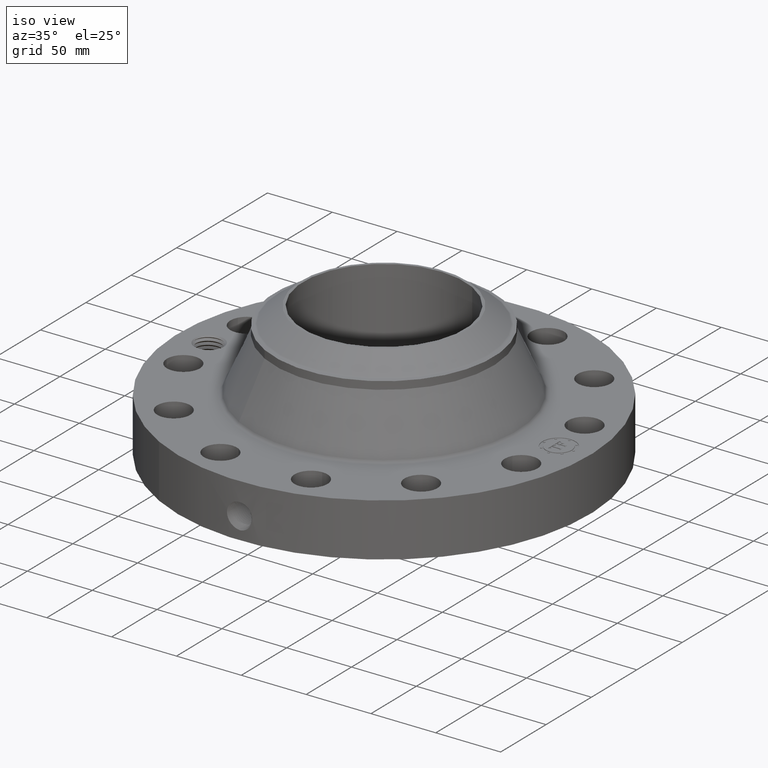
[diagram: clean part render]
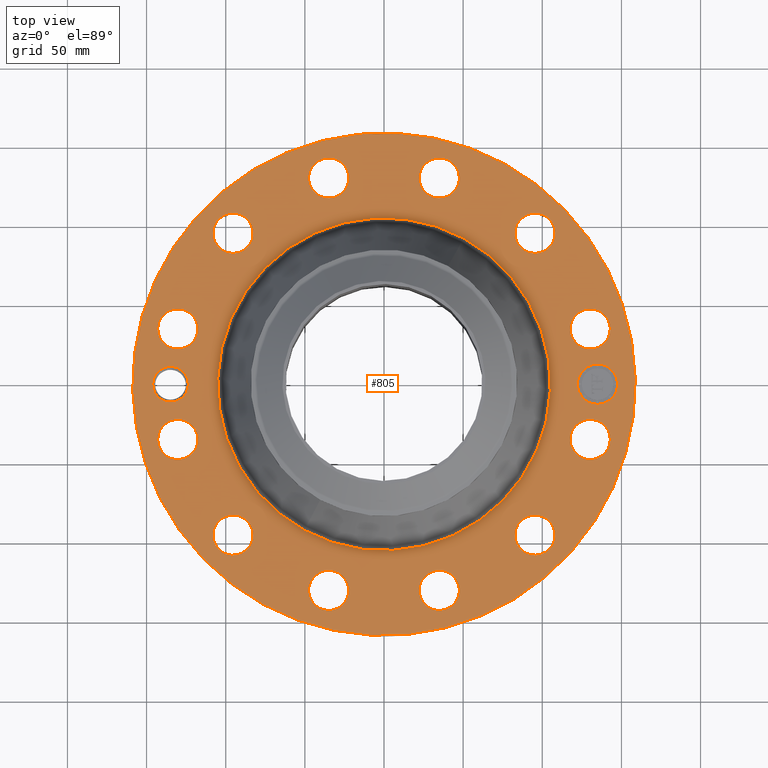
[diagram: tour spotlight — one face highlighted and labeled with its STEP entity id]
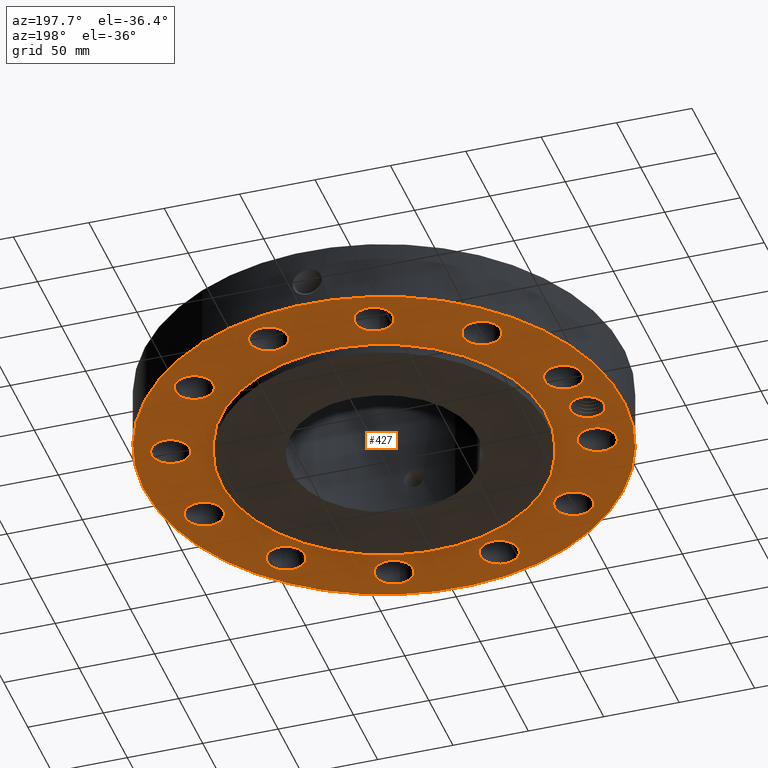
[diagram: tour spotlight — one face highlighted and labeled with its STEP entity id]
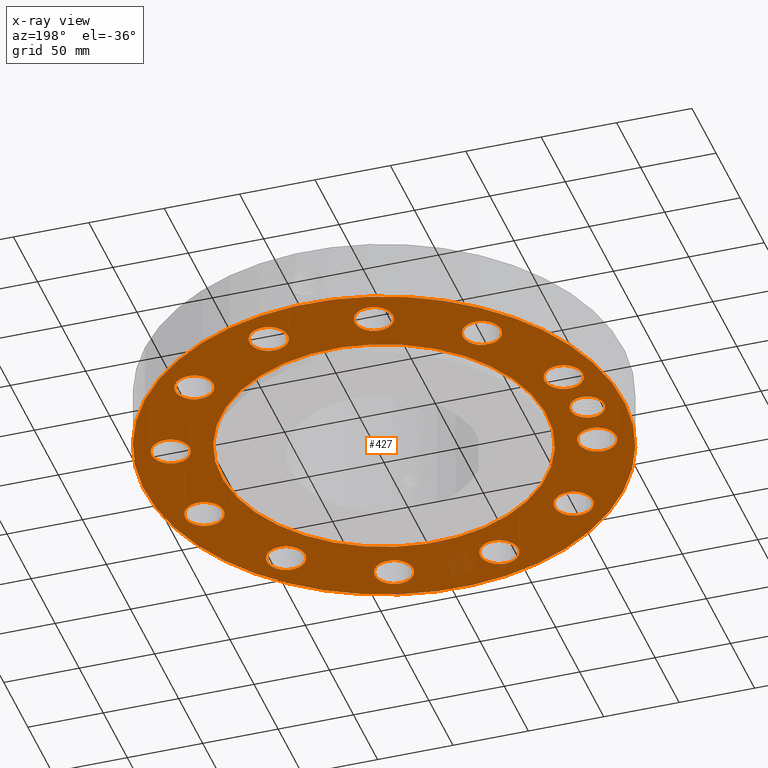
[diagram: x-ray of the same camera — body ghosted, this tour face saturated]
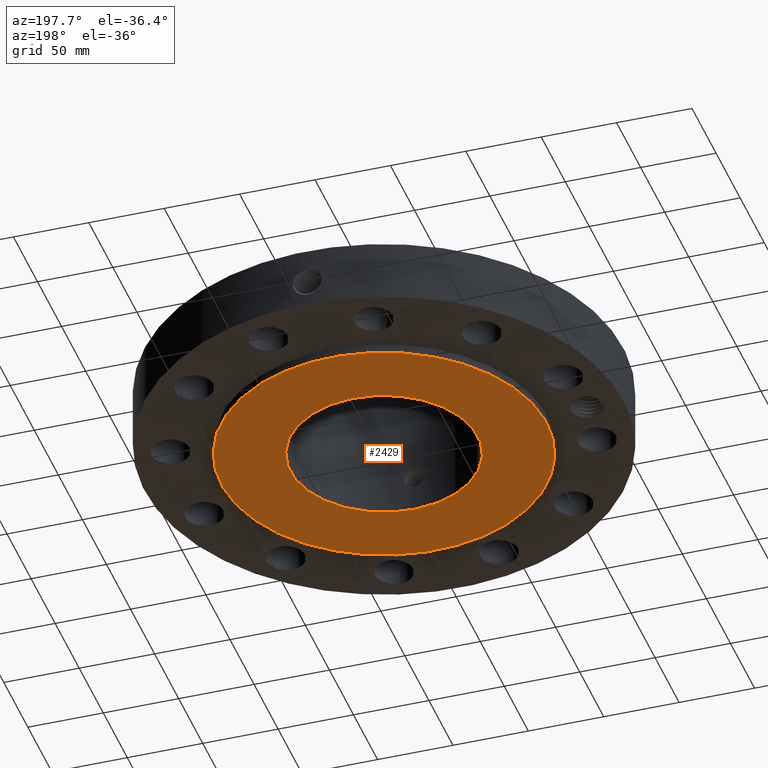
[diagram: tour spotlight — one face highlighted and labeled with its STEP entity id]
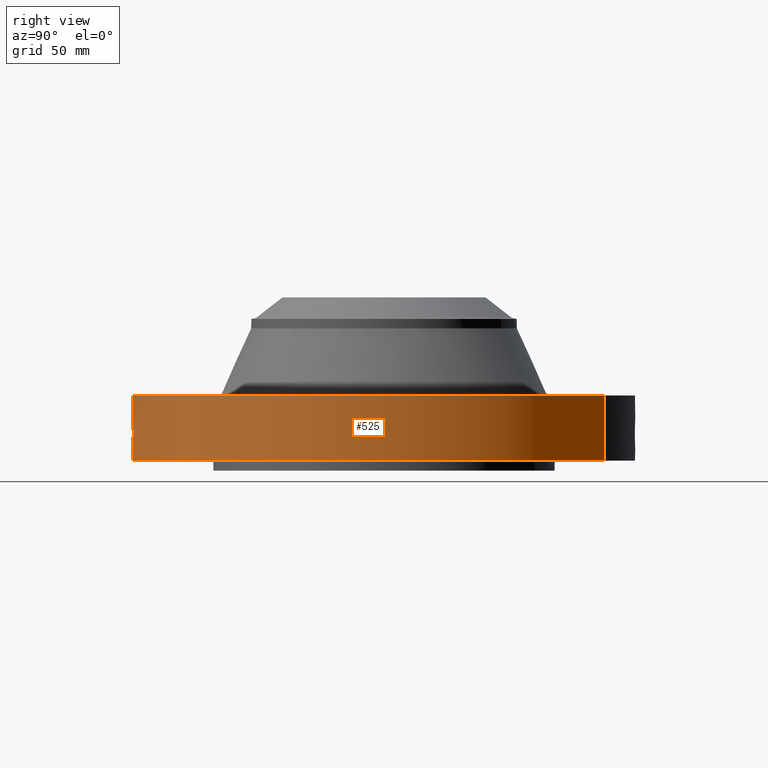
[diagram: tour spotlight — one face highlighted and labeled with its STEP entity id]
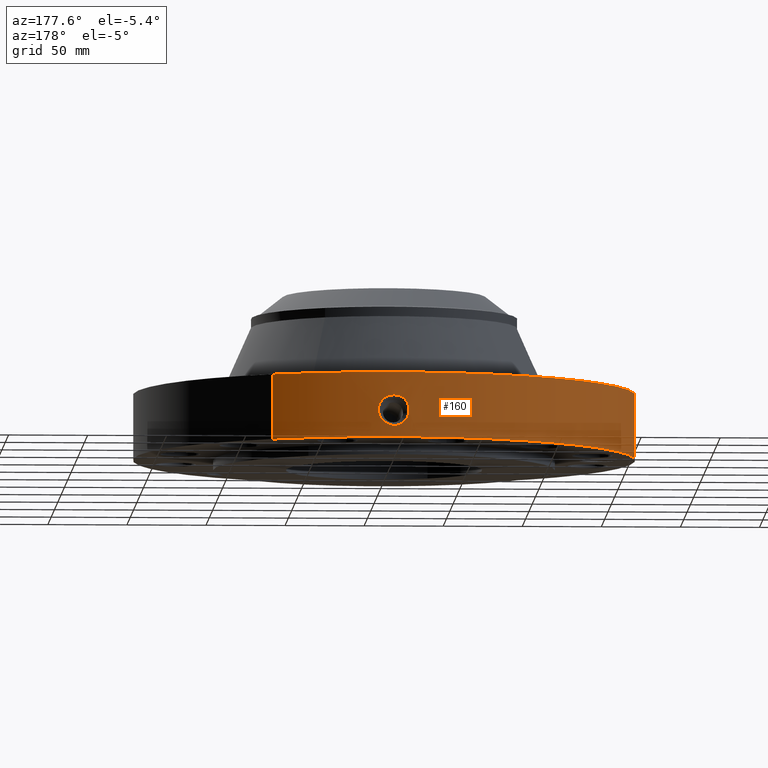
[diagram: tour spotlight — one face highlighted and labeled with its STEP entity id]
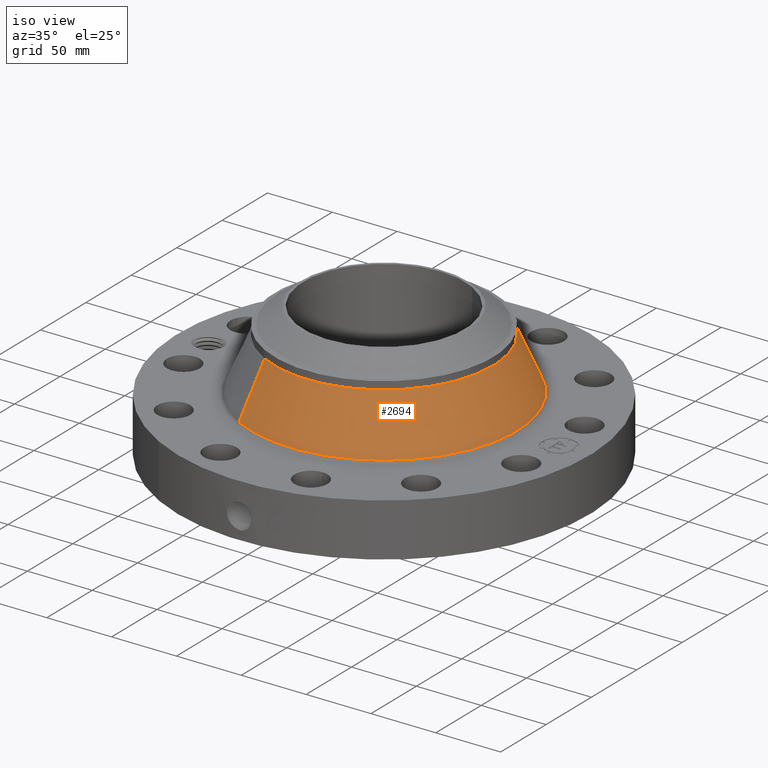
[diagram: tour spotlight — one face highlighted and labeled with its STEP entity id]
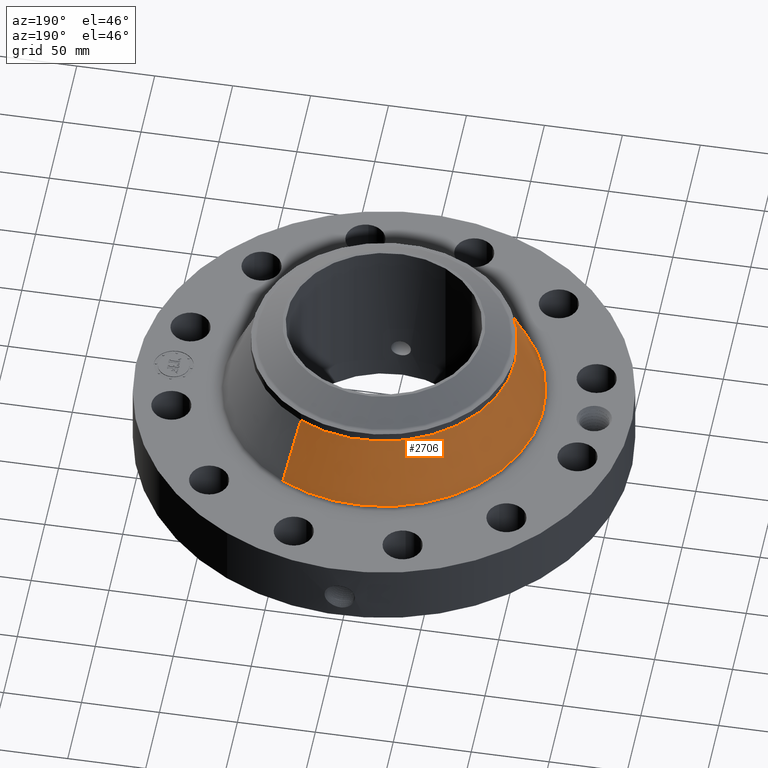
[diagram: tour spotlight — one face highlighted and labeled with its STEP entity id]
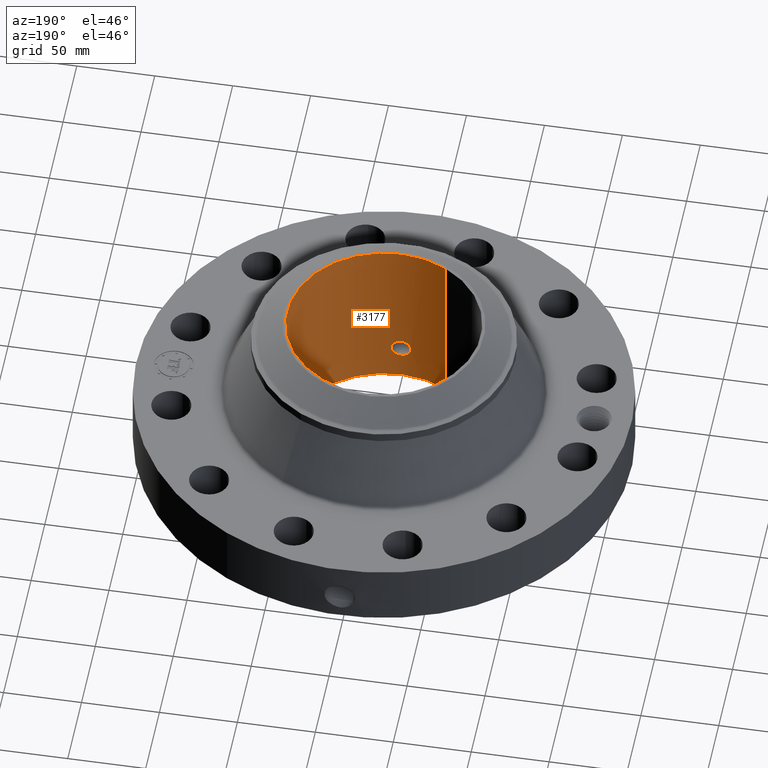
[diagram: tour spotlight — one face highlighted and labeled with its STEP entity id]
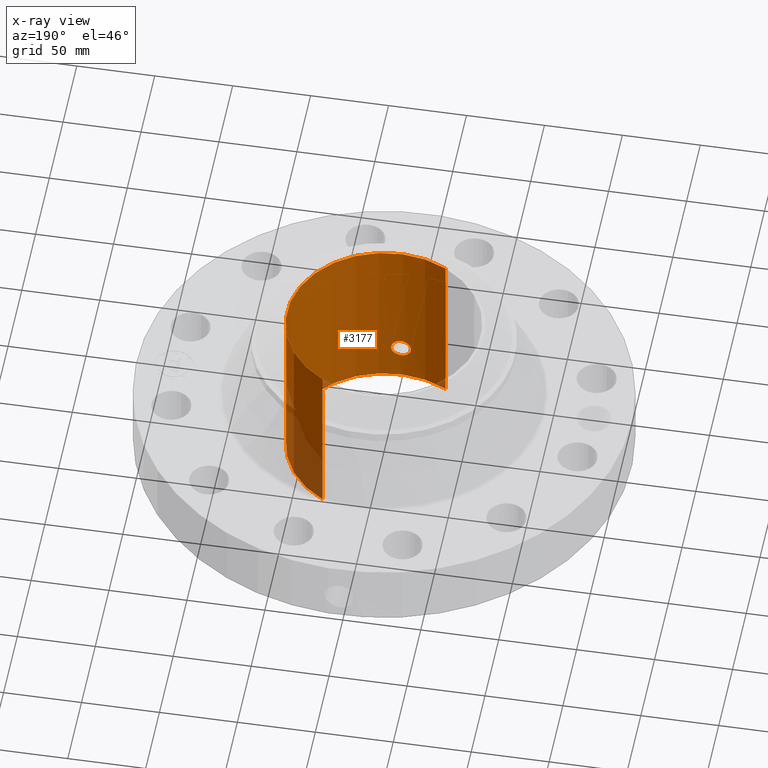
[diagram: x-ray of the same camera — body ghosted, this tour face saturated]
A machine part: a face-by-face anatomy tour. The part has 777 B-rep faces; the first image is the clean iso view, then the 8 largest visible faces are spotlighted one at a time (largest first), each with its STEP entity span.

Face 1 — top view, entity #805. In plain terms, the highlighted planar face has unit normal (0, 0, -1).
Definition (entity closure, byte-faithful):
#58=AXIS2_PLACEMENT_3D('Circle Axis2P3D',#56,#57,$) ;
#430=AXIS2_PLACEMENT_3D('Circle Axis2P3D',#428,#429,$) ;
#529=AXIS2_PLACEMENT_3D('Plane Axis2P3D',#526,#527,#528) ;
#537=AXIS2_PLACEMENT_3D('Circle Axis2P3D',#535,#536,$) ;
#546=AXIS2_PLACEMENT_3D('Circle Axis2P3D',#544,#545,$) ;
#555=AXIS2_PLACEMENT_3D('Circle Axis2P3D',#553,#554,$) ;
#564=AXIS2_PLACEMENT_3D('Circle Axis2P3D',#562,#563,$) ;
#573=AXIS2_PLACEMENT_3D('Circle Axis2P3D',#571,#572,$) ;
#582=AXIS2_PLACEMENT_3D('Circle Axis2P3D',#580,#581,$) ;
#591=AXIS2_PLACEMENT_3D('Circle Axis2P3D',#589,#590,$) ;
#600=AXIS2_PLACEMENT_3D('Circle Axis2P3D',#598,#599,$) ;
#609=AXIS2_PLACEMENT_3D('Circle Axis2P3D',#607,#608,$) ;
#618=AXIS2_PLACEMENT_3D('Circle Axis2P3D',#616,#617,$) ;
#627=AXIS2_PLACEMENT_3D('Circle Axis2P3D',#625,#626,$) ;
#636=AXIS2_PLACEMENT_3D('Circle Axis2P3D',#634,#635,$) ;
#645=AXIS2_PLACEMENT_3D('Circle Axis2P3D',#643,#644,$) ;
#654=AXIS2_PLACEMENT_3D('Circle Axis2P3D',#652,#653,$) ;
#663=AXIS2_PLACEMENT_3D('Circle Axis2P3D',#661,#662,$) ;
#672=AXIS2_PLACEMENT_3D('Circle Axis2P3D',#670,#671,$) ;
#681=AXIS2_PLACEMENT_3D('Circle Axis2P3D',#679,#680,$) ;
#690=AXIS2_PLACEMENT_3D('Circle Axis2P3D',#688,#689,$) ;
#699=AXIS2_PLACEMENT_3D('Circle Axis2P3D',#697,#698,$) ;
#708=AXIS2_PLACEMENT_3D('Circle Axis2P3D',#706,#707,$) ;
#717=AXIS2_PLACEMENT_3D('Circle Axis2P3D',#715,#716,$) ;
#726=AXIS2_PLACEMENT_3D('Circle Axis2P3D',#724,#725,$) ;
#735=AXIS2_PLACEMENT_3D('Circle Axis2P3D',#733,#734,$) ;
#744=AXIS2_PLACEMENT_3D('Circle Axis2P3D',#742,#743,$) ;
#753=AXIS2_PLACEMENT_3D('Circle Axis2P3D',#751,#752,$) ;
#762=AXIS2_PLACEMENT_3D('Circle Axis2P3D',#760,#761,$) ;
#771=AXIS2_PLACEMENT_3D('Circle Axis2P3D',#769,#770,$) ;
#780=AXIS2_PLACEMENT_3D('Circle Axis2P3D',#778,#779,$) ;
#789=AXIS2_PLACEMENT_3D('Circle Axis2P3D',#787,#788,$) ;
#798=AXIS2_PLACEMENT_3D('Circle Axis2P3D',#796,#797,$) ;
#53=CARTESIAN_POINT('Vertex',(-2.99640961629,-5.48489101184,1.87000000001)) ;
#56=CARTESIAN_POINT('Axis2P3D Location',(0.,0.,1.87000000001)) ;
#60=CARTESIAN_POINT('Vertex',(2.99640961629,5.48489101184,1.87000000001)) ;
#428=CARTESIAN_POINT('Axis2P3D Location',(0.,0.,1.87000000001)) ;
#526=CARTESIAN_POINT('Axis2P3D Location',(0.,6.25000000003,1.87000000001)) ;
#535=CARTESIAN_POINT('Axis2P3D Location',(-5.31000000002,-1.1189649382E-015,1.87000000001)) ;
#539=CARTESIAN_POINT('Vertex',(-5.69860672217,0.212296819878,1.87000000001)) ;
#541=CARTESIAN_POINT('Vertex',(-4.92139327788,-0.212296819878,1.87000000001)) ;
#544=CARTESIAN_POINT('Axis2P3D Location',(-5.31000000002,-1.1189649382E-015,1.87000000001)) ;
#553=CARTESIAN_POINT('Axis2P3D Location',(5.12906613762,-1.3743291295,1.87000000001)) ;
#557=CARTESIAN_POINT('Vertex',(4.69027485667,-1.1346163602,1.87000000001)) ;
#559=CARTESIAN_POINT('Vertex',(5.56785741856,-1.6140418988,1.87000000001)) ;
#562=CARTESIAN_POINT('Axis2P3D Location',(5.12906613762,-1.3743291295,1.87000000001)) ;
#571=CARTESIAN_POINT('Axis2P3D Location',(0.,0.,1.87000000001)) ;
#575=CARTESIAN_POINT('Vertex',(-1.98379266045,-3.63130810738,1.87000000001)) ;
#577=CARTESIAN_POINT('Vertex',(1.98379266045,3.63130810738,1.87000000001)) ;
#580=CARTESIAN_POINT('Axis2P3D Location',(0.,0.,1.87000000001)) ;
#589=CARTESIAN_POINT('Axis2P3D Location',(3.75473700812,-3.75473700812,1.87000000001)) ;
#593=CARTESIAN_POINT('Vertex',(4.01488501972,-4.18172999642,1.87000000001)) ;
#595=CARTESIAN_POINT('Vertex',(3.49458899651,-3.32774401981,1.87000000001)) ;
#598=CARTESIAN_POINT('Axis2P3D Location',(3.75473700812,-3.75473700812,1.87000000001)) ;
#607=CARTESIAN_POINT('Axis2P3D Location',(1.3743291295,-5.12906613762,1.87000000001)) ;
#611=CARTESIAN_POINT('Vertex',(1.38612742215,-5.62892691853,1.87000000001)) ;
#613=CARTESIAN_POINT('Vertex',(1.36253083685,-4.6292053567,1.87000000001)) ;
#616=CARTESIAN_POINT('Axis2P3D Location',(1.3743291295,-5.12906613762,1.87000000001)) ;
#625=CARTESIAN_POINT('Axis2P3D Location',(-1.3743291295,-5.12906613762,1.87000000001)) ;
#629=CARTESIAN_POINT('Vertex',(-1.6140418988,-5.56785741856,1.87000000001)) ;
#631=CARTESIAN_POINT('Vertex',(-1.1346163602,-4.69027485667,1.87000000001)) ;
#634=CARTESIAN_POINT('Axis2P3D Location',(-1.3743291295,-5.12906613762,1.87000000001)) ;
#643=CARTESIAN_POINT('Axis2P3D Location',(-3.75473700812,-3.75473700812,1.87000000001)) ;
#647=CARTESIAN_POINT('Vertex',(-4.18172999642,-4.01488501972,1.87000000001)) ;
#649=CARTESIAN_POINT('Vertex',(-3.32774401981,-3.49458899651,1.87000000001)) ;
#652=CARTESIAN_POINT('Axis2P3D Location',(-3.75473700812,-3.75473700812,1.87000000001)) ;
#661=CARTESIAN_POINT('Axis2P3D Location',(-5.12906613762,-1.3743291295,1.87000000001)) ;
#665=CARTESIAN_POINT('Vertex',(-5.62892691853,-1.38612742215,1.87000000001)) ;
#667=CARTESIAN_POINT('Vertex',(-4.6292053567,-1.36253083685,1.87000000001)) ;
#670=CARTESIAN_POINT('Axis2P3D Location',(-5.12906613762,-1.3743291295,1.87000000001)) ;
#679=CARTESIAN_POINT('Axis2P3D Location',(-5.12906613762,1.3743291295,1.87000000001)) ;
#683=CARTESIAN_POINT('Vertex',(-5.56785741856,1.6140418988,1.87000000001)) ;
#685=CARTESIAN_POINT('Vertex',(-4.69027485667,1.1346163602,1.87000000001)) ;
#688=CARTESIAN_POINT('Axis2P3D Location',(-5.12906613762,1.3743291295,1.87000000001)) ;
#697=CARTESIAN_POINT('Axis2P3D Location',(-3.75473700812,3.75473700812,1.87000000001)) ;
#701=CARTESIAN_POINT('Vertex',(-4.01488501972,4.18172999642,1.87000000001)) ;
#703=CARTESIAN_POINT('Vertex',(-3.49458899651,3.32774401981,1.87000000001)) ;
#706=CARTESIAN_POINT('Axis2P3D Location',(-3.75473700812,3.75473700812,1.87000000001)) ;
#715=CARTESIAN_POINT('Axis2P3D Location',(-1.3743291295,5.12906613762,1.87000000001)) ;
#719=CARTESIAN_POINT('Vertex',(-1.38612742215,5.62892691853,1.87000000001)) ;
#721=CARTESIAN_POINT('Vertex',(-1.36253083685,4.6292053567,1.87000000001)) ;
#724=CARTESIAN_POINT('Axis2P3D Location',(-1.3743291295,5.12906613762,1.87000000001)) ;
#733=CARTESIAN_POINT('Axis2P3D Location',(1.3743291295,5.12906613762,1.87000000001)) ;
#737=CARTESIAN_POINT('Vertex',(1.6140418988,5.56785741856,1.87000000001)) ;
#739=CARTESIAN_POINT('Vertex',(1.1346163602,4.69027485667,1.87000000001)) ;
#742=CARTESIAN_POINT('Axis2P3D Location',(1.3743291295,5.12906613762,1.87000000001)) ;
#751=CARTESIAN_POINT('Axis2P3D Location',(3.75473700812,3.75473700812,1.87000000001)) ;
#755=CARTESIAN_POINT('Vertex',(4.18172999642,4.01488501972,1.87000000001)) ;
#757=CARTESIAN_POINT('Vertex',(3.32774401981,3.49458899651,1.87000000001)) ;
#760=CARTESIAN_POINT('Axis2P3D Location',(3.75473700812,3.75473700812,1.87000000001)) ;
#769=CARTESIAN_POINT('Axis2P3D Location',(5.12906613762,1.3743291295,1.87000000001)) ;
#773=CARTESIAN_POINT('Vertex',(5.62892691853,1.38612742215,1.87000000001)) ;
#775=CARTESIAN_POINT('Vertex',(4.6292053567,1.36253083685,1.87000000001)) ;
#778=CARTESIAN_POINT('Axis2P3D Location',(5.12906613762,1.3743291295,1.87000000001)) ;
#787=CARTESIAN_POINT('Axis2P3D Location',(5.31000000002,-1.90224039495E-014,1.87000000001)) ;
#791=CARTESIAN_POINT('Vertex',(5.31000000002,0.499999995002,1.87000000001)) ;
#793=CARTESIAN_POINT('Vertex',(5.31000000002,-0.499999995002,1.87000000001)) ;
#796=CARTESIAN_POINT('Axis2P3D Location',(5.31000000002,-2.01413688877E-014,1.87000000001)) ;
#57=DIRECTION('Axis2P3D Direction',(0.,0.,-0.0393700787402)) ;
#429=DIRECTION('Axis2P3D Direction',(0.,0.,-0.0393700787402)) ;
#527=DIRECTION('Axis2P3D Direction',(0.,0.,-0.0393700787402)) ;
#528=DIRECTION('Axis2P3D XDirection',(0.0393700787402,0.,0.)) ;
#536=DIRECTION('Axis2P3D Direction',(0.,0.,-0.0393700787402)) ;
#545=DIRECTION('Axis2P3D Direction',(0.,0.,-0.0393700787402)) ;
#554=DIRECTION('Axis2P3D Direction',(0.,0.,-0.0393700787402)) ;
#563=DIRECTION('Axis2P3D Direction',(0.,0.,-0.0393700787402)) ;
#572=DIRECTION('Axis2P3D Direction',(0.,0.,-0.0393700787402)) ;
#581=DIRECTION('Axis2P3D Direction',(0.,0.,-0.0393700787402)) ;
#590=DIRECTION('Axis2P3D Direction',(0.,0.,-0.0393700787402)) ;
#599=DIRECTION('Axis2P3D Direction',(0.,0.,-0.0393700787402)) ;
#608=DIRECTION('Axis2P3D Direction',(0.,0.,-0.0393700787402)) ;
#617=DIRECTION('Axis2P3D Direction',(0.,0.,-0.0393700787402)) ;
#626=DIRECTION('Axis2P3D Direction',(0.,0.,-0.0393700787402)) ;
#635=DIRECTION('Axis2P3D Direction',(0.,0.,-0.0393700787402)) ;
#644=DIRECTION('Axis2P3D Direction',(0.,0.,-0.0393700787402)) ;
#653=DIRECTION('Axis2P3D Direction',(0.,0.,-0.0393700787402)) ;
#662=DIRECTION('Axis2P3D Direction',(0.,0.,-0.0393700787402)) ;
#671=DIRECTION('Axis2P3D Direction',(0.,0.,-0.0393700787402)) ;
#680=DIRECTION('Axis2P3D Direction',(0.,0.,-0.0393700787402)) ;
#689=DIRECTION('Axis2P3D Direction',(0.,0.,-0.0393700787402)) ;
#698=DIRECTION('Axis2P3D Direction',(0.,0.,-0.0393700787402)) ;
#707=DIRECTION('Axis2P3D Direction',(0.,0.,-0.0393700787402)) ;
#716=DIRECTION('Axis2P3D Direction',(0.,0.,-0.0393700787402)) ;
#725=DIRECTION('Axis2P3D Direction',(0.,0.,-0.0393700787402)) ;
#734=DIRECTION('Axis2P3D Direction',(0.,0.,-0.0393700787402)) ;
#743=DIRECTION('Axis2P3D Direction',(0.,0.,-0.0393700787402)) ;
#752=DIRECTION('Axis2P3D Direction',(0.,0.,-0.0393700787402)) ;
#761=DIRECTION('Axis2P3D Direction',(0.,0.,-0.0393700787402)) ;
#770=DIRECTION('Axis2P3D Direction',(0.,0.,-0.0393700787402)) ;
#779=DIRECTION('Axis2P3D Direction',(0.,0.,-0.0393700787402)) ;
#788=DIRECTION('Axis2P3D Direction',(0.,0.,-0.0393700787402)) ;
#797=DIRECTION('Axis2P3D Direction',(0.,0.,-0.0393700787402)) ;
#532=ORIENTED_EDGE('',*,*,#432,.F.) ;
#533=ORIENTED_EDGE('',*,*,#62,.F.) ;
#550=ORIENTED_EDGE('',*,*,#543,.T.) ;
#551=ORIENTED_EDGE('',*,*,#548,.T.) ;
#568=ORIENTED_EDGE('',*,*,#561,.T.) ;
#569=ORIENTED_EDGE('',*,*,#566,.T.) ;
#586=ORIENTED_EDGE('',*,*,#579,.T.) ;
#587=ORIENTED_EDGE('',*,*,#584,.T.) ;
#604=ORIENTED_EDGE('',*,*,#597,.T.) ;
#605=ORIENTED_EDGE('',*,*,#602,.T.) ;
#622=ORIENTED_EDGE('',*,*,#615,.T.) ;
#623=ORIENTED_EDGE('',*,*,#620,.T.) ;
#640=ORIENTED_EDGE('',*,*,#633,.T.) ;
#641=ORIENTED_EDGE('',*,*,#638,.T.) ;
#658=ORIENTED_EDGE('',*,*,#651,.T.) ;
#659=ORIENTED_EDGE('',*,*,#656,.T.) ;
#676=ORIENTED_EDGE('',*,*,#669,.T.) ;
#677=ORIENTED_EDGE('',*,*,#674,.T.) ;
#694=ORIENTED_EDGE('',*,*,#687,.T.) ;
#695=ORIENTED_EDGE('',*,*,#692,.T.) ;
#712=ORIENTED_EDGE('',*,*,#705,.T.) ;
#713=ORIENTED_EDGE('',*,*,#710,.T.) ;
#730=ORIENTED_EDGE('',*,*,#723,.T.) ;
#731=ORIENTED_EDGE('',*,*,#728,.T.) ;
#748=ORIENTED_EDGE('',*,*,#741,.T.) ;
#749=ORIENTED_EDGE('',*,*,#746,.T.) ;
#766=ORIENTED_EDGE('',*,*,#759,.T.) ;
#767=ORIENTED_EDGE('',*,*,#764,.T.) ;
#784=ORIENTED_EDGE('',*,*,#777,.T.) ;
#785=ORIENTED_EDGE('',*,*,#782,.T.) ;
#802=ORIENTED_EDGE('',*,*,#795,.T.) ;
#803=ORIENTED_EDGE('',*,*,#800,.T.) ;
#552=FACE_BOUND('',#549,.T.) ;
#570=FACE_BOUND('',#567,.T.) ;
#588=FACE_BOUND('',#585,.T.) ;
#606=FACE_BOUND('',#603,.T.) ;
#624=FACE_BOUND('',#621,.T.) ;
#642=FACE_BOUND('',#639,.T.) ;
#660=FACE_BOUND('',#657,.T.) ;
#678=FACE_BOUND('',#675,.T.) ;
#696=FACE_BOUND('',#693,.T.) ;
#714=FACE_BOUND('',#711,.T.) ;
#732=FACE_BOUND('',#729,.T.) ;
#750=FACE_BOUND('',#747,.T.) ;
#768=FACE_BOUND('',#765,.T.) ;
#786=FACE_BOUND('',#783,.T.) ;
#804=FACE_BOUND('',#801,.T.) ;
#805=ADVANCED_FACE('PartBody',(#534,#552,#570,#588,#606,#624,#642,#660,#678,#696,#714,#732,#750,#768,#786,#804),#530,.F.) ;
#59=CIRCLE('generated circle',#58,6.25000000003) ;
#431=CIRCLE('generated circle',#430,6.25000000003) ;
#538=CIRCLE('generated circle',#537,0.442815000002) ;
#547=CIRCLE('generated circle',#546,0.442815000002) ;
#556=CIRCLE('generated circle',#555,0.500000000002) ;
#565=CIRCLE('generated circle',#564,0.500000000002) ;
#574=CIRCLE('generated circle',#573,4.1378535366) ;
#583=CIRCLE('generated circle',#582,4.1378535366) ;
#592=CIRCLE('generated circle',#591,0.500000000002) ;
#601=CIRCLE('generated circle',#600,0.500000000002) ;
#610=CIRCLE('generated circle',#609,0.500000000002) ;
#619=CIRCLE('generated circle',#618,0.500000000002) ;
#628=CIRCLE('generated circle',#627,0.500000000002) ;
#637=CIRCLE('generated circle',#636,0.500000000002) ;
#646=CIRCLE('generated circle',#645,0.500000000002) ;
#655=CIRCLE('generated circle',#654,0.500000000002) ;
#664=CIRCLE('generated circle',#663,0.500000000002) ;
#673=CIRCLE('generated circle',#672,0.500000000002) ;
#682=CIRCLE('generated circle',#681,0.500000000002) ;
#691=CIRCLE('generated circle',#690,0.500000000002) ;
#700=CIRCLE('generated circle',#699,0.500000000002) ;
#709=CIRCLE('generated circle',#708,0.500000000002) ;
#718=CIRCLE('generated circle',#717,0.500000000002) ;
#727=CIRCLE('generated circle',#726,0.500000000002) ;
#736=CIRCLE('generated circle',#735,0.500000000002) ;
#745=CIRCLE('generated circle',#744,0.500000000002) ;
#754=CIRCLE('generated circle',#753,0.500000000002) ;
#763=CIRCLE('generated circle',#762,0.500000000002) ;
#772=CIRCLE('generated circle',#771,0.500000000002) ;
#781=CIRCLE('generated circle',#780,0.500000000002) ;
#790=CIRCLE('generated circle',#789,0.499999995002) ;
#799=CIRCLE('generated circle',#798,0.499999995002) ;
#62=EDGE_CURVE('',#54,#61,#59,.T.) ;
#432=EDGE_CURVE('',#61,#54,#431,.T.) ;
#543=EDGE_CURVE('',#540,#542,#538,.T.) ;
#548=EDGE_CURVE('',#542,#540,#547,.T.) ;
#561=EDGE_CURVE('',#558,#560,#556,.T.) ;
#566=EDGE_CURVE('',#560,#558,#565,.T.) ;
#579=EDGE_CURVE('',#576,#578,#574,.T.) ;
#584=EDGE_CURVE('',#578,#576,#583,.T.) ;
#597=EDGE_CURVE('',#594,#596,#592,.T.) ;
#602=EDGE_CURVE('',#596,#594,#601,.T.) ;
#615=EDGE_CURVE('',#612,#614,#610,.T.) ;
#620=EDGE_CURVE('',#614,#612,#619,.T.) ;
#633=EDGE_CURVE('',#630,#632,#628,.T.) ;
#638=EDGE_CURVE('',#632,#630,#637,.T.) ;
#651=EDGE_CURVE('',#648,#650,#646,.T.) ;
#656=EDGE_CURVE('',#650,#648,#655,.T.) ;
#669=EDGE_CURVE('',#666,#668,#664,.T.) ;
#674=EDGE_CURVE('',#668,#666,#673,.T.) ;
#687=EDGE_CURVE('',#684,#686,#682,.T.) ;
#692=EDGE_CURVE('',#686,#684,#691,.T.) ;
#705=EDGE_CURVE('',#702,#704,#700,.T.) ;
#710=EDGE_CURVE('',#704,#702,#709,.T.) ;
#723=EDGE_CURVE('',#720,#722,#718,.T.) ;
#728=EDGE_CURVE('',#722,#720,#727,.T.) ;
#741=EDGE_CURVE('',#738,#740,#736,.T.) ;
#746=EDGE_CURVE('',#740,#738,#745,.T.) ;
#759=EDGE_CURVE('',#756,#758,#754,.T.) ;
#764=EDGE_CURVE('',#758,#756,#763,.T.) ;
#777=EDGE_CURVE('',#774,#776,#772,.T.) ;
#782=EDGE_CURVE('',#776,#774,#781,.T.) ;
#795=EDGE_CURVE('',#792,#794,#790,.T.) ;
#800=EDGE_CURVE('',#794,#792,#799,.T.) ;
#531=EDGE_LOOP('',(#532,#533)) ;
#549=EDGE_LOOP('',(#550,#551)) ;
#567=EDGE_LOOP('',(#568,#569)) ;
#585=EDGE_LOOP('',(#586,#587)) ;
#603=EDGE_LOOP('',(#604,#605)) ;
#621=EDGE_LOOP('',(#622,#623)) ;
#639=EDGE_LOOP('',(#640,#641)) ;
#657=EDGE_LOOP('',(#658,#659)) ;
#675=EDGE_LOOP('',(#676,#677)) ;
#693=EDGE_LOOP('',(#694,#695)) ;
#711=EDGE_LOOP('',(#712,#713)) ;
#729=EDGE_LOOP('',(#730,#731)) ;
#747=EDGE_LOOP('',(#748,#749)) ;
#765=EDGE_LOOP('',(#766,#767)) ;
#783=EDGE_LOOP('',(#784,#785)) ;
#801=EDGE_LOOP('',(#802,#803)) ;
#534=FACE_OUTER_BOUND('',#531,.T.) ;
#530=PLANE('',#529) ;
#54=VERTEX_POINT('',#53) ;
#61=VERTEX_POINT('',#60) ;
#540=VERTEX_POINT('',#539) ;
#542=VERTEX_POINT('',#541) ;
#558=VERTEX_POINT('',#557) ;
#560=VERTEX_POINT('',#559) ;
#576=VERTEX_POINT('',#575) ;
#578=VERTEX_POINT('',#577) ;
#594=VERTEX_POINT('',#593) ;
#596=VERTEX_POINT('',#595) ;
#612=VERTEX_POINT('',#611) ;
#614=VERTEX_POINT('',#613) ;
#630=VERTEX_POINT('',#629) ;
#632=VERTEX_POINT('',#631) ;
#648=VERTEX_POINT('',#647) ;
#650=VERTEX_POINT('',#649) ;
#666=VERTEX_POINT('',#665) ;
#668=VERTEX_POINT('',#667) ;
#684=VERTEX_POINT('',#683) ;
#686=VERTEX_POINT('',#685) ;
#702=VERTEX_POINT('',#701) ;
#704=VERTEX_POINT('',#703) ;
#720=VERTEX_POINT('',#719) ;
#722=VERTEX_POINT('',#721) ;
#738=VERTEX_POINT('',#737) ;
#740=VERTEX_POINT('',#739) ;
#756=VERTEX_POINT('',#755) ;
#758=VERTEX_POINT('',#757) ;
#774=VERTEX_POINT('',#773) ;
#776=VERTEX_POINT('',#775) ;
#792=VERTEX_POINT('',#791) ;
#794=VERTEX_POINT('',#793) ;

Face 2 — auxiliary view, entity #427. An x-ray twin of the same camera follows (body ghosted, this face saturated) — the face is partly hidden behind the body. In plain terms, the highlighted planar face has unit normal (0, 0, -1).
Definition (entity closure, byte-faithful):
#42=AXIS2_PLACEMENT_3D('Circle Axis2P3D',#40,#41,$) ;
#164=AXIS2_PLACEMENT_3D('Plane Axis2P3D',#161,#162,#163) ;
#168=AXIS2_PLACEMENT_3D('Circle Axis2P3D',#166,#167,$) ;
#177=AXIS2_PLACEMENT_3D('Circle Axis2P3D',#175,#176,$) ;
#186=AXIS2_PLACEMENT_3D('Circle Axis2P3D',#184,#185,$) ;
#195=AXIS2_PLACEMENT_3D('Circle Axis2P3D',#193,#194,$) ;
#204=AXIS2_PLACEMENT_3D('Circle Axis2P3D',#202,#203,$) ;
#213=AXIS2_PLACEMENT_3D('Circle Axis2P3D',#211,#212,$) ;
#222=AXIS2_PLACEMENT_3D('Circle Axis2P3D',#220,#221,$) ;
#231=AXIS2_PLACEMENT_3D('Circle Axis2P3D',#229,#230,$) ;
#240=AXIS2_PLACEMENT_3D('Circle Axis2P3D',#238,#239,$) ;
#249=AXIS2_PLACEMENT_3D('Circle Axis2P3D',#247,#248,$) ;
#258=AXIS2_PLACEMENT_3D('Circle Axis2P3D',#256,#257,$) ;
#267=AXIS2_PLACEMENT_3D('Circle Axis2P3D',#265,#266,$) ;
#276=AXIS2_PLACEMENT_3D('Circle Axis2P3D',#274,#275,$) ;
#285=AXIS2_PLACEMENT_3D('Circle Axis2P3D',#283,#284,$) ;
#294=AXIS2_PLACEMENT_3D('Circle Axis2P3D',#292,#293,$) ;
#303=AXIS2_PLACEMENT_3D('Circle Axis2P3D',#301,#302,$) ;
#312=AXIS2_PLACEMENT_3D('Circle Axis2P3D',#310,#311,$) ;
#321=AXIS2_PLACEMENT_3D('Circle Axis2P3D',#319,#320,$) ;
#330=AXIS2_PLACEMENT_3D('Circle Axis2P3D',#328,#329,$) ;
#339=AXIS2_PLACEMENT_3D('Circle Axis2P3D',#337,#338,$) ;
#348=AXIS2_PLACEMENT_3D('Circle Axis2P3D',#346,#347,$) ;
#357=AXIS2_PLACEMENT_3D('Circle Axis2P3D',#355,#356,$) ;
#366=AXIS2_PLACEMENT_3D('Circle Axis2P3D',#364,#365,$) ;
#375=AXIS2_PLACEMENT_3D('Circle Axis2P3D',#373,#374,$) ;
#384=AXIS2_PLACEMENT_3D('Circle Axis2P3D',#382,#383,$) ;
#393=AXIS2_PLACEMENT_3D('Circle Axis2P3D',#391,#392,$) ;
#402=AXIS2_PLACEMENT_3D('Circle Axis2P3D',#400,#401,$) ;
#411=AXIS2_PLACEMENT_3D('Circle Axis2P3D',#409,#410,$) ;
#420=AXIS2_PLACEMENT_3D('Circle Axis2P3D',#418,#419,$) ;
#40=CARTESIAN_POINT('Axis2P3D Location',(0.,0.,0.250000000001)) ;
#44=CARTESIAN_POINT('Vertex',(-2.99640961629,-5.48489101184,0.250000000001)) ;
#46=CARTESIAN_POINT('Vertex',(2.99640961629,5.48489101184,0.250000000001)) ;
#161=CARTESIAN_POINT('Axis2P3D Location',(0.,4.25000000002,0.250000000001)) ;
#166=CARTESIAN_POINT('Axis2P3D Location',(0.,0.,0.250000000001)) ;
#175=CARTESIAN_POINT('Axis2P3D Location',(-5.31000000002,1.1189649382E-015,0.250000000001)) ;
#179=CARTESIAN_POINT('Vertex',(-4.92139327788,-0.212296819878,0.250000000001)) ;
#181=CARTESIAN_POINT('Vertex',(-5.69860672217,0.212296819878,0.250000000001)) ;
#184=CARTESIAN_POINT('Axis2P3D Location',(-5.31000000002,1.1189649382E-015,0.250000000001)) ;
#193=CARTESIAN_POINT('Axis2P3D Location',(5.12906613762,-1.3743291295,0.250000000001)) ;
#197=CARTESIAN_POINT('Vertex',(5.56785741856,-1.6140418988,0.250000000001)) ;
#199=CARTESIAN_POINT('Vertex',(4.69027485667,-1.1346163602,0.250000000001)) ;
#202=CARTESIAN_POINT('Axis2P3D Location',(5.12906613762,-1.3743291295,0.250000000001)) ;
#211=CARTESIAN_POINT('Axis2P3D Location',(0.,0.,0.250000000001)) ;
#215=CARTESIAN_POINT('Vertex',(2.03755853908,3.72972588805,0.250000000001)) ;
#217=CARTESIAN_POINT('Vertex',(-2.03755853908,-3.72972588805,0.250000000001)) ;
#220=CARTESIAN_POINT('Axis2P3D Location',(0.,0.,0.250000000001)) ;
#229=CARTESIAN_POINT('Axis2P3D Location',(3.75473700812,-3.75473700812,0.250000000001)) ;
#233=CARTESIAN_POINT('Vertex',(3.49458899651,-3.32774401981,0.250000000001)) ;
#235=CARTESIAN_POINT('Vertex',(4.01488501972,-4.18172999642,0.250000000001)) ;
#238=CARTESIAN_POINT('Axis2P3D Location',(3.75473700812,-3.75473700812,0.250000000001)) ;
#247=CARTESIAN_POINT('Axis2P3D Location',(1.3743291295,-5.12906613762,0.250000000001)) ;
#251=CARTESIAN_POINT('Vertex',(1.36253083685,-4.6292053567,0.250000000001)) ;
#253=CARTESIAN_POINT('Vertex',(1.38612742215,-5.62892691853,0.250000000001)) ;
#256=CARTESIAN_POINT('Axis2P3D Location',(1.3743291295,-5.12906613762,0.250000000001)) ;
#265=CARTESIAN_POINT('Axis2P3D Location',(-1.3743291295,-5.12906613762,0.250000000001)) ;
#269=CARTESIAN_POINT('Vertex',(-1.1346163602,-4.69027485667,0.250000000001)) ;
#271=CARTESIAN_POINT('Vertex',(-1.6140418988,-5.56785741856,0.250000000001)) ;
#274=CARTESIAN_POINT('Axis2P3D Location',(-1.3743291295,-5.12906613762,0.250000000001)) ;
#283=CARTESIAN_POINT('Axis2P3D Location',(-3.75473700812,-3.75473700812,0.250000000001)) ;
#287=CARTESIAN_POINT('Vertex',(-3.32774401981,-3.49458899651,0.250000000001)) ;
#289=CARTESIAN_POINT('Vertex',(-4.18172999642,-4.01488501972,0.250000000001)) ;
#292=CARTESIAN_POINT('Axis2P3D Location',(-3.75473700812,-3.75473700812,0.250000000001)) ;
#301=CARTESIAN_POINT('Axis2P3D Location',(-5.12906613762,-1.3743291295,0.250000000001)) ;
#305=CARTESIAN_POINT('Vertex',(-4.6292053567,-1.36253083685,0.250000000001)) ;
#307=CARTESIAN_POINT('Vertex',(-5.62892691853,-1.38612742215,0.250000000001)) ;
#310=CARTESIAN_POINT('Axis2P3D Location',(-5.12906613762,-1.3743291295,0.250000000001)) ;
#319=CARTESIAN_POINT('Axis2P3D Location',(-5.12906613762,1.3743291295,0.250000000001)) ;
#323=CARTESIAN_POINT('Vertex',(-4.69027485667,1.1346163602,0.250000000001)) ;
#325=CARTESIAN_POINT('Vertex',(-5.56785741856,1.6140418988,0.250000000001)) ;
#328=CARTESIAN_POINT('Axis2P3D Location',(-5.12906613762,1.3743291295,0.250000000001)) ;
#337=CARTESIAN_POINT('Axis2P3D Location',(-3.75473700812,3.75473700812,0.250000000001)) ;
#341=CARTESIAN_POINT('Vertex',(-3.49458899651,3.32774401981,0.250000000001)) ;
#343=CARTESIAN_POINT('Vertex',(-4.01488501972,4.18172999642,0.250000000001)) ;
#346=CARTESIAN_POINT('Axis2P3D Location',(-3.75473700812,3.75473700812,0.250000000001)) ;
#355=CARTESIAN_POINT('Axis2P3D Location',(-1.3743291295,5.12906613762,0.250000000001)) ;
#359=CARTESIAN_POINT('Vertex',(-1.36253083685,4.6292053567,0.250000000001)) ;
#361=CARTESIAN_POINT('Vertex',(-1.38612742215,5.62892691853,0.250000000001)) ;
#364=CARTESIAN_POINT('Axis2P3D Location',(-1.3743291295,5.12906613762,0.250000000001)) ;
#373=CARTESIAN_POINT('Axis2P3D Location',(1.3743291295,5.12906613762,0.250000000001)) ;
#377=CARTESIAN_POINT('Vertex',(1.1346163602,4.69027485667,0.250000000001)) ;
#379=CARTESIAN_POINT('Vertex',(1.6140418988,5.56785741856,0.250000000001)) ;
#382=CARTESIAN_POINT('Axis2P3D Location',(1.3743291295,5.12906613762,0.250000000001)) ;
#391=CARTESIAN_POINT('Axis2P3D Location',(3.75473700812,3.75473700812,0.250000000001)) ;
#395=CARTESIAN_POINT('Vertex',(3.32774401981,3.49458899651,0.250000000001)) ;
#397=CARTESIAN_POINT('Vertex',(4.18172999642,4.01488501972,0.250000000001)) ;
#400=CARTESIAN_POINT('Axis2P3D Location',(3.75473700812,3.75473700812,0.250000000001)) ;
#409=CARTESIAN_POINT('Axis2P3D Location',(5.12906613762,1.3743291295,0.250000000001)) ;
#413=CARTESIAN_POINT('Vertex',(4.6292053567,1.36253083685,0.250000000001)) ;
#415=CARTESIAN_POINT('Vertex',(5.62892691853,1.38612742215,0.250000000001)) ;
#418=CARTESIAN_POINT('Axis2P3D Location',(5.12906613762,1.3743291295,0.250000000001)) ;
#41=DIRECTION('Axis2P3D Direction',(0.,0.,-0.0393700787402)) ;
#162=DIRECTION('Axis2P3D Direction',(0.,0.,-0.0393700787402)) ;
#163=DIRECTION('Axis2P3D XDirection',(0.0393700787402,0.,0.)) ;
#167=DIRECTION('Axis2P3D Direction',(0.,0.,-0.0393700787402)) ;
#176=DIRECTION('Axis2P3D Direction',(0.,0.,-0.0393700787402)) ;
#185=DIRECTION('Axis2P3D Direction',(0.,0.,-0.0393700787402)) ;
#194=DIRECTION('Axis2P3D Direction',(0.,0.,-0.0393700787402)) ;
#203=DIRECTION('Axis2P3D Direction',(0.,0.,-0.0393700787402)) ;
#212=DIRECTION('Axis2P3D Direction',(0.,0.,-0.0393700787402)) ;
#221=DIRECTION('Axis2P3D Direction',(0.,0.,-0.0393700787402)) ;
#230=DIRECTION('Axis2P3D Direction',(0.,0.,-0.0393700787402)) ;
#239=DIRECTION('Axis2P3D Direction',(0.,0.,-0.0393700787402)) ;
#248=DIRECTION('Axis2P3D Direction',(0.,0.,-0.0393700787402)) ;
#257=DIRECTION('Axis2P3D Direction',(0.,0.,-0.0393700787402)) ;
#266=DIRECTION('Axis2P3D Direction',(0.,0.,-0.0393700787402)) ;
#275=DIRECTION('Axis2P3D Direction',(0.,0.,-0.0393700787402)) ;
#284=DIRECTION('Axis2P3D Direction',(0.,0.,-0.0393700787402)) ;
#293=DIRECTION('Axis2P3D Direction',(0.,0.,-0.0393700787402)) ;
#302=DIRECTION('Axis2P3D Direction',(0.,0.,-0.0393700787402)) ;
#311=DIRECTION('Axis2P3D Direction',(0.,0.,-0.0393700787402)) ;
#320=DIRECTION('Axis2P3D Direction',(0.,0.,-0.0393700787402)) ;
#329=DIRECTION('Axis2P3D Direction',(0.,0.,-0.0393700787402)) ;
#338=DIRECTION('Axis2P3D Direction',(0.,0.,-0.0393700787402)) ;
#347=DIRECTION('Axis2P3D Direction',(0.,0.,-0.0393700787402)) ;
#356=DIRECTION('Axis2P3D Direction',(0.,0.,-0.0393700787402)) ;
#365=DIRECTION('Axis2P3D Direction',(0.,0.,-0.0393700787402)) ;
#374=DIRECTION('Axis2P3D Direction',(0.,0.,-0.0393700787402)) ;
#383=DIRECTION('Axis2P3D Direction',(0.,0.,-0.0393700787402)) ;
#392=DIRECTION('Axis2P3D Direction',(0.,0.,-0.0393700787402)) ;
#401=DIRECTION('Axis2P3D Direction',(0.,0.,-0.0393700787402)) ;
#410=DIRECTION('Axis2P3D Direction',(0.,0.,-0.0393700787402)) ;
#419=DIRECTION('Axis2P3D Direction',(0.,0.,-0.0393700787402)) ;
#172=ORIENTED_EDGE('',*,*,#48,.T.) ;
#173=ORIENTED_EDGE('',*,*,#170,.T.) ;
#190=ORIENTED_EDGE('',*,*,#183,.F.) ;
#191=ORIENTED_EDGE('',*,*,#188,.F.) ;
#208=ORIENTED_EDGE('',*,*,#201,.F.) ;
#209=ORIENTED_EDGE('',*,*,#206,.F.) ;
#226=ORIENTED_EDGE('',*,*,#219,.F.) ;
#227=ORIENTED_EDGE('',*,*,#224,.F.) ;
#244=ORIENTED_EDGE('',*,*,#237,.F.) ;
#245=ORIENTED_EDGE('',*,*,#242,.F.) ;
#262=ORIENTED_EDGE('',*,*,#255,.F.) ;
#263=ORIENTED_EDGE('',*,*,#260,.F.) ;
#280=ORIENTED_EDGE('',*,*,#273,.F.) ;
#281=ORIENTED_EDGE('',*,*,#278,.F.) ;
#298=ORIENTED_EDGE('',*,*,#291,.F.) ;
#299=ORIENTED_EDGE('',*,*,#296,.F.) ;
#316=ORIENTED_EDGE('',*,*,#309,.F.) ;
#317=ORIENTED_EDGE('',*,*,#314,.F.) ;
#334=ORIENTED_EDGE('',*,*,#327,.F.) ;
#335=ORIENTED_EDGE('',*,*,#332,.F.) ;
#352=ORIENTED_EDGE('',*,*,#345,.F.) ;
#353=ORIENTED_EDGE('',*,*,#350,.F.) ;
#370=ORIENTED_EDGE('',*,*,#363,.F.) ;
#371=ORIENTED_EDGE('',*,*,#368,.F.) ;
#388=ORIENTED_EDGE('',*,*,#381,.F.) ;
#389=ORIENTED_EDGE('',*,*,#386,.F.) ;
#406=ORIENTED_EDGE('',*,*,#399,.F.) ;
#407=ORIENTED_EDGE('',*,*,#404,.F.) ;
#424=ORIENTED_EDGE('',*,*,#417,.F.) ;
#425=ORIENTED_EDGE('',*,*,#422,.F.) ;
#192=FACE_BOUND('',#189,.T.) ;
#210=FACE_BOUND('',#207,.T.) ;
#228=FACE_BOUND('',#225,.T.) ;
#246=FACE_BOUND('',#243,.T.) ;
#264=FACE_BOUND('',#261,.T.) ;
#282=FACE_BOUND('',#279,.T.) ;
#300=FACE_BOUND('',#297,.T.) ;
#318=FACE_BOUND('',#315,.T.) ;
#336=FACE_BOUND('',#333,.T.) ;
#354=FACE_BOUND('',#351,.T.) ;
#372=FACE_BOUND('',#369,.T.) ;
#390=FACE_BOUND('',#387,.T.) ;
#408=FACE_BOUND('',#405,.T.) ;
#426=FACE_BOUND('',#423,.T.) ;
#427=ADVANCED_FACE('PartBody',(#174,#192,#210,#228,#246,#264,#282,#300,#318,#336,#354,#372,#390,#408,#426),#165,.T.) ;
#43=CIRCLE('generated circle',#42,6.25000000003) ;
#169=CIRCLE('generated circle',#168,6.25000000003) ;
#178=CIRCLE('generated circle',#177,0.442815000002) ;
#187=CIRCLE('generated circle',#186,0.442815000002) ;
#196=CIRCLE('generated circle',#195,0.500000000002) ;
#205=CIRCLE('generated circle',#204,0.500000000002) ;
#214=CIRCLE('generated circle',#213,4.25000000002) ;
#223=CIRCLE('generated circle',#222,4.25000000002) ;
#232=CIRCLE('generated circle',#231,0.500000000002) ;
#241=CIRCLE('generated circle',#240,0.500000000002) ;
#250=CIRCLE('generated circle',#249,0.500000000002) ;
#259=CIRCLE('generated circle',#258,0.500000000002) ;
#268=CIRCLE('generated circle',#267,0.500000000002) ;
#277=CIRCLE('generated circle',#276,0.500000000002) ;
#286=CIRCLE('generated circle',#285,0.500000000002) ;
#295=CIRCLE('generated circle',#294,0.500000000002) ;
#304=CIRCLE('generated circle',#303,0.500000000002) ;
#313=CIRCLE('generated circle',#312,0.500000000002) ;
#322=CIRCLE('generated circle',#321,0.500000000002) ;
#331=CIRCLE('generated circle',#330,0.500000000002) ;
#340=CIRCLE('generated circle',#339,0.500000000002) ;
#349=CIRCLE('generated circle',#348,0.500000000002) ;
#358=CIRCLE('generated circle',#357,0.500000000002) ;
#367=CIRCLE('generated circle',#366,0.500000000002) ;
#376=CIRCLE('generated circle',#375,0.500000000002) ;
#385=CIRCLE('generated circle',#384,0.500000000002) ;
#394=CIRCLE('generated circle',#393,0.500000000002) ;
#403=CIRCLE('generated circle',#402,0.500000000002) ;
#412=CIRCLE('generated circle',#411,0.500000000002) ;
#421=CIRCLE('generated circle',#420,0.500000000002) ;
#48=EDGE_CURVE('',#45,#47,#43,.T.) ;
#170=EDGE_CURVE('',#47,#45,#169,.T.) ;
#183=EDGE_CURVE('',#180,#182,#178,.T.) ;
#188=EDGE_CURVE('',#182,#180,#187,.T.) ;
#201=EDGE_CURVE('',#198,#200,#196,.T.) ;
#206=EDGE_CURVE('',#200,#198,#205,.T.) ;
#219=EDGE_CURVE('',#216,#218,#214,.T.) ;
#224=EDGE_CURVE('',#218,#216,#223,.T.) ;
#237=EDGE_CURVE('',#234,#236,#232,.T.) ;
#242=EDGE_CURVE('',#236,#234,#241,.T.) ;
#255=EDGE_CURVE('',#252,#254,#250,.T.) ;
#260=EDGE_CURVE('',#254,#252,#259,.T.) ;
#273=EDGE_CURVE('',#270,#272,#268,.T.) ;
#278=EDGE_CURVE('',#272,#270,#277,.T.) ;
#291=EDGE_CURVE('',#288,#290,#286,.T.) ;
#296=EDGE_CURVE('',#290,#288,#295,.T.) ;
#309=EDGE_CURVE('',#306,#308,#304,.T.) ;
#314=EDGE_CURVE('',#308,#306,#313,.T.) ;
#327=EDGE_CURVE('',#324,#326,#322,.T.) ;
#332=EDGE_CURVE('',#326,#324,#331,.T.) ;
#345=EDGE_CURVE('',#342,#344,#340,.T.) ;
#350=EDGE_CURVE('',#344,#342,#349,.T.) ;
#363=EDGE_CURVE('',#360,#362,#358,.T.) ;
#368=EDGE_CURVE('',#362,#360,#367,.T.) ;
#381=EDGE_CURVE('',#378,#380,#376,.T.) ;
#386=EDGE_CURVE('',#380,#378,#385,.T.) ;
#399=EDGE_CURVE('',#396,#398,#394,.T.) ;
#404=EDGE_CURVE('',#398,#396,#403,.T.) ;
#417=EDGE_CURVE('',#414,#416,#412,.T.) ;
#422=EDGE_CURVE('',#416,#414,#421,.T.) ;
#171=EDGE_LOOP('',(#172,#173)) ;
#189=EDGE_LOOP('',(#190,#191)) ;
#207=EDGE_LOOP('',(#208,#209)) ;
#225=EDGE_LOOP('',(#226,#227)) ;
#243=EDGE_LOOP('',(#244,#245)) ;
#261=EDGE_LOOP('',(#262,#263)) ;
#279=EDGE_LOOP('',(#280,#281)) ;
#297=EDGE_LOOP('',(#298,#299)) ;
#315=EDGE_LOOP('',(#316,#317)) ;
#333=EDGE_LOOP('',(#334,#335)) ;
#351=EDGE_LOOP('',(#352,#353)) ;
#369=EDGE_LOOP('',(#370,#371)) ;
#387=EDGE_LOOP('',(#388,#389)) ;
#405=EDGE_LOOP('',(#406,#407)) ;
#423=EDGE_LOOP('',(#424,#425)) ;
#174=FACE_OUTER_BOUND('',#171,.T.) ;
#165=PLANE('',#164) ;
#45=VERTEX_POINT('',#44) ;
#47=VERTEX_POINT('',#46) ;
#180=VERTEX_POINT('',#179) ;
#182=VERTEX_POINT('',#181) ;
#198=VERTEX_POINT('',#197) ;
#200=VERTEX_POINT('',#199) ;
#216=VERTEX_POINT('',#215) ;
#218=VERTEX_POINT('',#217) ;
#234=VERTEX_POINT('',#233) ;
#236=VERTEX_POINT('',#235) ;
#252=VERTEX_POINT('',#251) ;
#254=VERTEX_POINT('',#253) ;
#270=VERTEX_POINT('',#269) ;
#272=VERTEX_POINT('',#271) ;
#288=VERTEX_POINT('',#287) ;
#290=VERTEX_POINT('',#289) ;
#306=VERTEX_POINT('',#305) ;
#308=VERTEX_POINT('',#307) ;
#324=VERTEX_POINT('',#323) ;
#326=VERTEX_POINT('',#325) ;
#342=VERTEX_POINT('',#341) ;
#344=VERTEX_POINT('',#343) ;
#360=VERTEX_POINT('',#359) ;
#362=VERTEX_POINT('',#361) ;
#378=VERTEX_POINT('',#377) ;
#380=VERTEX_POINT('',#379) ;
#396=VERTEX_POINT('',#395) ;
#398=VERTEX_POINT('',#397) ;
#414=VERTEX_POINT('',#413) ;
#416=VERTEX_POINT('',#415) ;

Face 3 — auxiliary view, entity #2429. In plain terms, the highlighted planar face has unit normal (0, 0, -1).
Definition (entity closure, byte-faithful):
#1238=AXIS2_PLACEMENT_3D('Circle Axis2P3D',#1236,#1237,$) ;
#1264=AXIS2_PLACEMENT_3D('Circle Axis2P3D',#1262,#1263,$) ;
#2405=AXIS2_PLACEMENT_3D('Plane Axis2P3D',#2402,#2403,#2404) ;
#2413=AXIS2_PLACEMENT_3D('Circle Axis2P3D',#2411,#2412,$) ;
#2422=AXIS2_PLACEMENT_3D('Circle Axis2P3D',#2420,#2421,$) ;
#1236=CARTESIAN_POINT('Axis2P3D Location',(0.,0.,2.79741234551E-016)) ;
#1240=CARTESIAN_POINT('Vertex',(2.03755853908,3.72972588805,2.79741234551E-016)) ;
#1242=CARTESIAN_POINT('Vertex',(-2.03755853908,-3.72972588805,2.79741234551E-016)) ;
#1262=CARTESIAN_POINT('Axis2P3D Location',(0.,0.,2.79741234551E-016)) ;
#2402=CARTESIAN_POINT('Axis2P3D Location',(0.,2.44850000001,0.)) ;
#2411=CARTESIAN_POINT('Axis2P3D Location',(0.,0.,0.)) ;
#2415=CARTESIAN_POINT('Vertex',(1.17387343128,2.1487609028,-5.31508345647E-015)) ;
#2417=CARTESIAN_POINT('Vertex',(-1.17387343128,-2.1487609028,-5.31508345647E-015)) ;
#2420=CARTESIAN_POINT('Axis2P3D Location',(0.,0.,0.)) ;
#1237=DIRECTION('Axis2P3D Direction',(0.,0.,-0.0393700787402)) ;
#1263=DIRECTION('Axis2P3D Direction',(0.,0.,-0.0393700787402)) ;
#2403=DIRECTION('Axis2P3D Direction',(0.,0.,-0.0393700787402)) ;
#2404=DIRECTION('Axis2P3D XDirection',(0.0393700787402,0.,0.)) ;
#2412=DIRECTION('Axis2P3D Direction',(0.,0.,-0.0393700787402)) ;
#2421=DIRECTION('Axis2P3D Direction',(0.,0.,-0.0393700787402)) ;
#2408=ORIENTED_EDGE('',*,*,#1266,.T.) ;
#2409=ORIENTED_EDGE('',*,*,#1244,.T.) ;
#2426=ORIENTED_EDGE('',*,*,#2419,.F.) ;
#2427=ORIENTED_EDGE('',*,*,#2424,.F.) ;
#2428=FACE_BOUND('',#2425,.T.) ;
#2429=ADVANCED_FACE('PartBody',(#2410,#2428),#2406,.T.) ;
#1239=CIRCLE('generated circle',#1238,4.25000000002) ;
#1265=CIRCLE('generated circle',#1264,4.25000000002) ;
#2414=CIRCLE('generated circle',#2413,2.44850000001) ;
#2423=CIRCLE('generated circle',#2422,2.44850000001) ;
#1244=EDGE_CURVE('',#1241,#1243,#1239,.T.) ;
#1266=EDGE_CURVE('',#1243,#1241,#1265,.T.) ;
#2419=EDGE_CURVE('',#2416,#2418,#2414,.T.) ;
#2424=EDGE_CURVE('',#2418,#2416,#2423,.T.) ;
#2407=EDGE_LOOP('',(#2408,#2409)) ;
#2425=EDGE_LOOP('',(#2426,#2427)) ;
#2410=FACE_OUTER_BOUND('',#2407,.T.) ;
#2406=PLANE('',#2405) ;
#1241=VERTEX_POINT('',#1240) ;
#1243=VERTEX_POINT('',#1242) ;
#2416=VERTEX_POINT('',#2415) ;
#2418=VERTEX_POINT('',#2417) ;

Face 4 — right view, entity #525. In plain terms, the highlighted cylindrical surface (partial cylindrical patch) has radius 158.75 mm, axis along (0, 0, -1).
Definition (entity closure, byte-faithful):
#38=AXIS2_PLACEMENT_3D('Cylinder Axis2P3D',#35,#36,#37) ;
#168=AXIS2_PLACEMENT_3D('Circle Axis2P3D',#166,#167,$) ;
#430=AXIS2_PLACEMENT_3D('Circle Axis2P3D',#428,#429,$) ;
#35=CARTESIAN_POINT('Axis2P3D Location',(0.,0.,2.15500000001)) ;
#44=CARTESIAN_POINT('Vertex',(-2.99640961629,-5.48489101184,0.250000000001)) ;
#46=CARTESIAN_POINT('Vertex',(2.99640961629,5.48489101184,0.250000000001)) ;
#49=CARTESIAN_POINT('Line Origine',(-2.99640961629,-5.48489101184,1.06)) ;
#53=CARTESIAN_POINT('Vertex',(-2.99640961629,-5.48489101184,1.87000000001)) ;
#60=CARTESIAN_POINT('Vertex',(2.99640961629,5.48489101184,1.87000000001)) ;
#63=CARTESIAN_POINT('Line Origine',(2.99640961629,5.48489101184,1.06)) ;
#166=CARTESIAN_POINT('Axis2P3D Location',(0.,0.,0.250000000001)) ;
#428=CARTESIAN_POINT('Axis2P3D Location',(0.,0.,1.87000000001)) ;
#440=CARTESIAN_POINT('Control Point',(0.0614635555364,-6.24969777122,1.28873453045)) ;
#441=CARTESIAN_POINT('Control Point',(0.0414206127854,-6.24989488644,1.29227337667)) ;
#442=CARTESIAN_POINT('Control Point',(0.0210705478789,-6.24999762516,1.29407720197)) ;
#443=CARTESIAN_POINT('Control Point',(0.000716625015346,-6.24999995894,1.29411849791)) ;
#444=CARTESIAN_POINT('Vertex',(0.0614452565132,-6.24969821853,1.28873805862)) ;
#446=CARTESIAN_POINT('Vertex',(0.000716453233954,-6.24999995896,1.29411850827)) ;
#450=CARTESIAN_POINT('Control Point',(0.0614451427414,-6.24969795228,1.28873745346)) ;
#451=CARTESIAN_POINT('Control Point',(0.0996017259069,-6.24932280828,1.28347528152)) ;
#452=CARTESIAN_POINT('Control Point',(0.13689896659,-6.24859400634,1.27129793697)) ;
#453=CARTESIAN_POINT('Control Point',(0.171067775012,-6.2476584267,1.25316971548)) ;
#454=CARTESIAN_POINT('Vertex',(0.171067775012,-6.2476584267,1.25316971548)) ;
#458=CARTESIAN_POINT('Control Point',(0.0296245997141,-6.24992979028,0.531087376398)) ;
#459=CARTESIAN_POINT('Control Point',(0.0850675771242,-6.24966699116,0.538171888175)) ;
#460=CARTESIAN_POINT('Control Point',(0.138902356166,-6.24879700942,0.555715194419)) ;
#461=CARTESIAN_POINT('Control Point',(0.188307485778,-6.24740321224,0.583150575725)) ;
#462=CARTESIAN_POINT('Control Point',(0.276449768279,-6.24415683952,0.655463594736)) ;
#463=CARTESIAN_POINT('Control Point',(0.333310167276,-6.24118110124,0.752323970083)) ;
#464=CARTESIAN_POINT('Control Point',(0.353079942558,-6.24002779597,0.806112150899)) ;
#465=CARTESIAN_POINT('Control Point',(0.369146415592,-6.23909137311,0.894601683973)) ;
#466=CARTESIAN_POINT('Control Point',(0.360945889029,-6.23956932855,0.982529605498)) ;
#467=CARTESIAN_POINT('Control Point',(0.354582046477,-6.23994118245,1.01463252783)) ;
#468=CARTESIAN_POINT('Control Point',(0.330408142267,-6.24131002118,1.09289300415)) ;
#469=CARTESIAN_POINT('Control Point',(0.286455175132,-6.24352531941,1.16242269853)) ;
#470=CARTESIAN_POINT('Control Point',(0.253273594767,-6.24503488647,1.19958792983)) ;
#471=CARTESIAN_POINT('Control Point',(0.214209145407,-6.24647716842,1.2302811104)) ;
#472=CARTESIAN_POINT('Control Point',(0.171067775012,-6.2476584267,1.25316971548)) ;
#473=CARTESIAN_POINT('Vertex',(0.0296245997141,-6.24992979028,0.531087376398)) ;
#477=CARTESIAN_POINT('Control Point',(0.0296245997141,-6.24992979028,0.531087376398)) ;
#478=CARTESIAN_POINT('Control Point',(0.0197431947632,-6.24997662803,0.530860276062)) ;
#479=CARTESIAN_POINT('Control Point',(0.00985871018469,-6.25000000433,0.53095616725)) ;
#480=CARTESIAN_POINT('Control Point',(-2.72878354167E-006,-6.25000000002,0.531374667805)) ;
#481=CARTESIAN_POINT('Vertex',(-2.72878353848E-006,-6.25000000002,0.531374667805)) ;
#485=CARTESIAN_POINT('Control Point',(-0.193907788677,-6.24699125738,0.58506310233)) ;
#486=CARTESIAN_POINT('Control Point',(-0.13470284063,-6.24882899015,0.552547301416)) ;
#487=CARTESIAN_POINT('Control Point',(-0.0677968513199,-6.24999997043,0.534251724086)) ;
#488=CARTESIAN_POINT('Control Point',(-2.72878354167E-006,-6.25000000002,0.531374667805)) ;
#489=CARTESIAN_POINT('Vertex',(-0.193907788677,-6.24699125738,0.58506310233)) ;
#493=CARTESIAN_POINT('Control Point',(-0.193907788677,-6.24699125738,0.58506310233)) ;
#494=CARTESIAN_POINT('Control Point',(-0.223359311733,-6.24607707654,0.601238098442)) ;
#495=CARTESIAN_POINT('Control Point',(-0.251216906995,-6.2450386423,0.620307113176)) ;
#496=CARTESIAN_POINT('Control Point',(-0.277075776188,-6.24392572389,0.642131280024)) ;
#497=CARTESIAN_POINT('Control Point',(-0.34493817196,-6.24068147765,0.71269402524)) ;
#498=CARTESIAN_POINT('Control Point',(-0.38912824419,-6.23793966199,0.801690051962)) ;
#499=CARTESIAN_POINT('Control Point',(-0.405171685345,-6.23683264622,0.865656484717)) ;
#500=CARTESIAN_POINT('Control Point',(-0.407320015376,-6.23674970346,0.979563780517)) ;
#501=CARTESIAN_POINT('Control Point',(-0.368187360938,-6.23918287819,1.08414176803)) ;
#502=CARTESIAN_POINT('Control Point',(-0.344342799506,-6.24059961542,1.12551354921)) ;
#503=CARTESIAN_POINT('Control Point',(-0.274833289366,-6.244271632,1.21150785034)) ;
#504=CARTESIAN_POINT('Control Point',(-0.180523298966,-6.24777195259,1.26763439892)) ;
#505=CARTESIAN_POINT('Control Point',(-0.121387710315,-6.24927433195,1.28831333588)) ;
#506=CARTESIAN_POINT('Control Point',(-0.0602306911755,-6.25000024927,1.29710706111)) ;
#507=CARTESIAN_POINT('Control Point',(2.5857935528E-005,-6.24999999997,1.29415298435)) ;
#508=CARTESIAN_POINT('Vertex',(2.58579355258E-005,-6.24999999997,1.29415298435)) ;
#512=CARTESIAN_POINT('Control Point',(0.000716453223095,-6.24999995896,1.29411850825)) ;
#513=CARTESIAN_POINT('Control Point',(0.000371179202307,-6.24999999854,1.29413605498)) ;
#514=CARTESIAN_POINT('Control Point',(2.58579421774E-005,-6.24999999997,1.29415298434)) ;
#36=DIRECTION('Axis2P3D Direction',(0.,0.,-0.0393700787402)) ;
#37=DIRECTION('Axis2P3D XDirection',(0.0188750212049,0.0345504945626,0.)) ;
#50=DIRECTION('Vector Direction',(0.,0.,-0.0393700787402)) ;
#64=DIRECTION('Vector Direction',(0.,0.,-0.0393700787402)) ;
#167=DIRECTION('Axis2P3D Direction',(0.,0.,-0.0393700787402)) ;
#429=DIRECTION('Axis2P3D Direction',(0.,0.,-0.0393700787402)) ;
#51=VECTOR('Line Direction',#50,0.0393700787402) ;
#65=VECTOR('Line Direction',#64,0.0393700787402) ;
#434=ORIENTED_EDGE('',*,*,#170,.F.) ;
#435=ORIENTED_EDGE('',*,*,#67,.T.) ;
#436=ORIENTED_EDGE('',*,*,#432,.T.) ;
#437=ORIENTED_EDGE('',*,*,#55,.F.) ;
#517=ORIENTED_EDGE('',*,*,#448,.F.) ;
#518=ORIENTED_EDGE('',*,*,#456,.T.) ;
#519=ORIENTED_EDGE('',*,*,#475,.F.) ;
#520=ORIENTED_EDGE('',*,*,#483,.T.) ;
#521=ORIENTED_EDGE('',*,*,#491,.F.) ;
#522=ORIENTED_EDGE('',*,*,#510,.T.) ;
#523=ORIENTED_EDGE('',*,*,#515,.F.) ;
#524=FACE_BOUND('',#516,.T.) ;
#525=ADVANCED_FACE('PartBody',(#438,#524),#39,.T.) ;
#439=B_SPLINE_CURVE_WITH_KNOTS('',3,(#440,#441,#442,#443),.UNSPECIFIED.,.F.,.U.,(4,4),(4.26354528348,6.52162971989),.UNSPECIFIED.) ;
#449=B_SPLINE_CURVE_WITH_KNOTS('',3,(#450,#451,#452,#453),.UNSPECIFIED.,.F.,.U.,(4,4),(0.,4.32783988466),.UNSPECIFIED.) ;
#457=B_SPLINE_CURVE_WITH_KNOTS('',5,(#458,#459,#460,#461,#462,#463,#464,#465,#466,#467,#468,#469,#470,#471,#472),.UNSPECIFIED.,.F.,.U.,(6,3,3,3,6),(0.,9.71432465192,19.9376130105,25.9632427403,35.0704253018),.UNSPECIFIED.) ;
#476=B_SPLINE_CURVE_WITH_KNOTS('',3,(#477,#478,#479,#480),.UNSPECIFIED.,.F.,.U.,(4,4),(0.,1.03063568957),.UNSPECIFIED.) ;
#484=B_SPLINE_CURVE_WITH_KNOTS('',3,(#485,#486,#487,#488),.UNSPECIFIED.,.F.,.U.,(4,4),(0.,7.0852785971),.UNSPECIFIED.) ;
#492=B_SPLINE_CURVE_WITH_KNOTS('',5,(#493,#494,#495,#496,#497,#498,#499,#500,#501,#502,#503,#504,#505,#506,#507),.UNSPECIFIED.,.F.,.U.,(6,3,3,3,6),(0.,5.87429063456,17.0154698008,25.3762087135,36.6394061676),.UNSPECIFIED.) ;
#511=B_SPLINE_CURVE_WITH_KNOTS('',2,(#512,#513,#514),.UNSPECIFIED.,.F.,.U.,(3,3),(1.07160087024,1.09741995095),.UNSPECIFIED.) ;
#169=CIRCLE('generated circle',#168,6.25000000003) ;
#431=CIRCLE('generated circle',#430,6.25000000003) ;
#39=CYLINDRICAL_SURFACE('generated cylinder',#38,6.25000000003) ;
#55=EDGE_CURVE('',#45,#54,#52,.F.) ;
#67=EDGE_CURVE('',#47,#61,#66,.F.) ;
#170=EDGE_CURVE('',#47,#45,#169,.T.) ;
#432=EDGE_CURVE('',#61,#54,#431,.T.) ;
#448=EDGE_CURVE('',#445,#447,#439,.T.) ;
#456=EDGE_CURVE('',#445,#455,#449,.T.) ;
#475=EDGE_CURVE('',#474,#455,#457,.T.) ;
#483=EDGE_CURVE('',#474,#482,#476,.T.) ;
#491=EDGE_CURVE('',#490,#482,#484,.T.) ;
#510=EDGE_CURVE('',#490,#509,#492,.T.) ;
#515=EDGE_CURVE('',#447,#509,#511,.T.) ;
#433=EDGE_LOOP('',(#434,#435,#436,#437)) ;
#516=EDGE_LOOP('',(#517,#518,#519,#520,#521,#522,#523)) ;
#438=FACE_OUTER_BOUND('',#433,.T.) ;
#52=LINE('Line',#49,#51) ;
#66=LINE('Line',#63,#65) ;
#45=VERTEX_POINT('',#44) ;
#47=VERTEX_POINT('',#46) ;
#54=VERTEX_POINT('',#53) ;
#61=VERTEX_POINT('',#60) ;
#445=VERTEX_POINT('',#444) ;
#447=VERTEX_POINT('',#446) ;
#455=VERTEX_POINT('',#454) ;
#474=VERTEX_POINT('',#473) ;
#482=VERTEX_POINT('',#481) ;
#490=VERTEX_POINT('',#489) ;
#509=VERTEX_POINT('',#508) ;

Face 5 — auxiliary view, entity #160. In plain terms, the highlighted cylindrical surface (partial cylindrical patch) has radius 158.75 mm, axis along (0, 0, -1).
Definition (entity closure, byte-faithful):
#38=AXIS2_PLACEMENT_3D('Cylinder Axis2P3D',#35,#36,#37) ;
#42=AXIS2_PLACEMENT_3D('Circle Axis2P3D',#40,#41,$) ;
#58=AXIS2_PLACEMENT_3D('Circle Axis2P3D',#56,#57,$) ;
#35=CARTESIAN_POINT('Axis2P3D Location',(0.,0.,2.15500000001)) ;
#40=CARTESIAN_POINT('Axis2P3D Location',(0.,0.,0.250000000001)) ;
#44=CARTESIAN_POINT('Vertex',(-2.99640961629,-5.48489101184,0.250000000001)) ;
#46=CARTESIAN_POINT('Vertex',(2.99640961629,5.48489101184,0.250000000001)) ;
#49=CARTESIAN_POINT('Line Origine',(-2.99640961629,-5.48489101184,1.06)) ;
#53=CARTESIAN_POINT('Vertex',(-2.99640961629,-5.48489101184,1.87000000001)) ;
#56=CARTESIAN_POINT('Axis2P3D Location',(0.,0.,1.87000000001)) ;
#60=CARTESIAN_POINT('Vertex',(2.99640961629,5.48489101184,1.87000000001)) ;
#63=CARTESIAN_POINT('Line Origine',(2.99640961629,5.48489101184,1.06)) ;
#75=CARTESIAN_POINT('Control Point',(-0.0614635555508,6.24969777122,1.28873453044)) ;
#76=CARTESIAN_POINT('Control Point',(-0.041420612793,6.24989488644,1.29227337667)) ;
#77=CARTESIAN_POINT('Control Point',(-0.0210705478814,6.24999762516,1.29407720197)) ;
#78=CARTESIAN_POINT('Control Point',(-0.000716625015663,6.24999995894,1.29411849791)) ;
#79=CARTESIAN_POINT('Vertex',(-0.0614452565132,6.24969821853,1.28873805862)) ;
#81=CARTESIAN_POINT('Vertex',(-0.000716453233952,6.24999995896,1.29411850827)) ;
#85=CARTESIAN_POINT('Control Point',(-0.0614451427414,6.24969795228,1.28873745346)) ;
#86=CARTESIAN_POINT('Control Point',(-0.0996017259091,6.24932280828,1.28347528152)) ;
#87=CARTESIAN_POINT('Control Point',(-0.136898966588,6.24859400634,1.27129793698)) ;
#88=CARTESIAN_POINT('Control Point',(-0.171067775012,6.2476584267,1.25316971548)) ;
#89=CARTESIAN_POINT('Vertex',(-0.171067775012,6.2476584267,1.25316971548)) ;
#93=CARTESIAN_POINT('Control Point',(-0.0296245997141,6.24992979028,0.531087376398)) ;
#94=CARTESIAN_POINT('Control Point',(-0.0850675771318,6.24966699116,0.538171888176)) ;
#95=CARTESIAN_POINT('Control Point',(-0.138902356181,6.24879700942,0.555715194424)) ;
#96=CARTESIAN_POINT('Control Point',(-0.188307485768,6.24740321224,0.583150575716)) ;
#97=CARTESIAN_POINT('Control Point',(-0.27644976826,6.24415683952,0.655463594717)) ;
#98=CARTESIAN_POINT('Control Point',(-0.333310167256,6.24118110124,0.75232397005)) ;
#99=CARTESIAN_POINT('Control Point',(-0.353079942565,6.24002779597,0.80611215094)) ;
#100=CARTESIAN_POINT('Control Point',(-0.36914641559,6.23909137311,0.894601683993)) ;
#101=CARTESIAN_POINT('Control Point',(-0.360945889028,6.23956932855,0.982529605499)) ;
#102=CARTESIAN_POINT('Control Point',(-0.354582046476,6.23994118245,1.01463252783)) ;
#103=CARTESIAN_POINT('Control Point',(-0.330408142261,6.24131002118,1.09289300417)) ;
#104=CARTESIAN_POINT('Control Point',(-0.286455175111,6.24352531942,1.16242269856)) ;
#105=CARTESIAN_POINT('Control Point',(-0.253273594795,6.24503488647,1.1995879298)) ;
#106=CARTESIAN_POINT('Control Point',(-0.214209145423,6.24647716842,1.23028111039)) ;
#107=CARTESIAN_POINT('Control Point',(-0.171067775012,6.2476584267,1.25316971548)) ;
#108=CARTESIAN_POINT('Vertex',(-0.0296245997141,6.24992979028,0.531087376398)) ;
#112=CARTESIAN_POINT('Control Point',(-0.029624599714,6.24992979028,0.531087376398)) ;
#113=CARTESIAN_POINT('Control Point',(-0.0197431947632,6.24997662803,0.530860276062)) ;
#114=CARTESIAN_POINT('Control Point',(-0.00985871018467,6.25000000433,0.53095616725)) ;
#115=CARTESIAN_POINT('Control Point',(2.728783552E-006,6.25000000002,0.531374667805)) ;
#116=CARTESIAN_POINT('Vertex',(2.72878353768E-006,6.25000000002,0.531374667805)) ;
#120=CARTESIAN_POINT('Control Point',(0.193907788678,6.24699125738,0.58506310233)) ;
#121=CARTESIAN_POINT('Control Point',(0.13470284063,6.24882899015,0.552547301416)) ;
#122=CARTESIAN_POINT('Control Point',(0.0677968513198,6.24999997043,0.534251724086)) ;
#123=CARTESIAN_POINT('Control Point',(2.72878355199E-006,6.25000000002,0.531374667805)) ;
#124=CARTESIAN_POINT('Vertex',(0.193907788677,6.24699125738,0.58506310233)) ;
#128=CARTESIAN_POINT('Control Point',(0.193907788678,6.24699125738,0.58506310233)) ;
#129=CARTESIAN_POINT('Control Point',(0.223359311742,6.24607707654,0.601238098447)) ;
#130=CARTESIAN_POINT('Control Point',(0.251216907012,6.2450386423,0.620307113187)) ;
#131=CARTESIAN_POINT('Control Point',(0.277075776179,6.24392572389,0.642131280013)) ;
#132=CARTESIAN_POINT('Control Point',(0.344938171971,6.24068147765,0.712694025251)) ;
#133=CARTESIAN_POINT('Control Point',(0.389128244213,6.23793966199,0.801690052002)) ;
#134=CARTESIAN_POINT('Control Point',(0.405171685345,6.23683264622,0.865656484683)) ;
#135=CARTESIAN_POINT('Control Point',(0.407320015382,6.23674970346,0.979563780498)) ;
#136=CARTESIAN_POINT('Control Point',(0.368187360941,6.23918287819,1.08414176802)) ;
#137=CARTESIAN_POINT('Control Point',(0.344342799493,6.24059961542,1.12551354923)) ;
#138=CARTESIAN_POINT('Control Point',(0.274833289352,6.244271632,1.21150785036)) ;
#139=CARTESIAN_POINT('Control Point',(0.180523298952,6.24777195259,1.26763439892)) ;
#140=CARTESIAN_POINT('Control Point',(0.121387710324,6.24927433195,1.28831333588)) ;
#141=CARTESIAN_POINT('Control Point',(0.0602306911798,6.25000024927,1.29710706111)) ;
#142=CARTESIAN_POINT('Control Point',(-2.58579355288E-005,6.24999999997,1.29415298435)) ;
#143=CARTESIAN_POINT('Vertex',(-2.58579355266E-005,6.24999999997,1.29415298435)) ;
#147=CARTESIAN_POINT('Control Point',(-0.00071645322308,6.24999995896,1.29411850825)) ;
#148=CARTESIAN_POINT('Control Point',(-0.000371179202307,6.24999999854,1.29413605498)) ;
#149=CARTESIAN_POINT('Control Point',(-2.58579421941E-005,6.24999999997,1.29415298434)) ;
#36=DIRECTION('Axis2P3D Direction',(0.,0.,-0.0393700787402)) ;
#37=DIRECTION('Axis2P3D XDirection',(0.0188750212049,0.0345504945626,0.)) ;
#41=DIRECTION('Axis2P3D Direction',(0.,0.,-0.0393700787402)) ;
#50=DIRECTION('Vector Direction',(0.,0.,-0.0393700787402)) ;
#57=DIRECTION('Axis2P3D Direction',(0.,0.,-0.0393700787402)) ;
#64=DIRECTION('Vector Direction',(0.,0.,-0.0393700787402)) ;
#51=VECTOR('Line Direction',#50,0.0393700787402) ;
#65=VECTOR('Line Direction',#64,0.0393700787402) ;
#69=ORIENTED_EDGE('',*,*,#48,.F.) ;
#70=ORIENTED_EDGE('',*,*,#55,.T.) ;
#71=ORIENTED_EDGE('',*,*,#62,.T.) ;
#72=ORIENTED_EDGE('',*,*,#67,.F.) ;
#152=ORIENTED_EDGE('',*,*,#83,.F.) ;
#153=ORIENTED_EDGE('',*,*,#91,.T.) ;
#154=ORIENTED_EDGE('',*,*,#110,.F.) ;
#155=ORIENTED_EDGE('',*,*,#118,.T.) ;
#156=ORIENTED_EDGE('',*,*,#126,.F.) ;
#157=ORIENTED_EDGE('',*,*,#145,.T.) ;
#158=ORIENTED_EDGE('',*,*,#150,.F.) ;
#159=FACE_BOUND('',#151,.T.) ;
#160=ADVANCED_FACE('PartBody',(#73,#159),#39,.T.) ;
#74=B_SPLINE_CURVE_WITH_KNOTS('',3,(#75,#76,#77,#78),.UNSPECIFIED.,.F.,.U.,(4,4),(4.26354528218,6.52162971876),.UNSPECIFIED.) ;
#84=B_SPLINE_CURVE_WITH_KNOTS('',3,(#85,#86,#87,#88),.UNSPECIFIED.,.F.,.U.,(4,4),(0.,4.32783988491),.UNSPECIFIED.) ;
#92=B_SPLINE_CURVE_WITH_KNOTS('',5,(#93,#94,#95,#96,#97,#98,#99,#100,#101,#102,#103,#104,#105,#106,#107),.UNSPECIFIED.,.F.,.U.,(6,3,3,3,6),(0.,9.71432465324,19.9376130082,25.963242738,35.070425303),.UNSPECIFIED.) ;
#111=B_SPLINE_CURVE_WITH_KNOTS('',3,(#112,#113,#114,#115),.UNSPECIFIED.,.F.,.U.,(4,4),(0.,1.03063568957),.UNSPECIFIED.) ;
#119=B_SPLINE_CURVE_WITH_KNOTS('',3,(#120,#121,#122,#123),.UNSPECIFIED.,.F.,.U.,(4,4),(0.,7.0852785971),.UNSPECIFIED.) ;
#127=B_SPLINE_CURVE_WITH_KNOTS('',5,(#128,#129,#130,#131,#132,#133,#134,#135,#136,#137,#138,#139,#140,#141,#142),.UNSPECIFIED.,.F.,.U.,(6,3,3,3,6),(0.,5.87429063638,17.015469806,25.3762087175,36.6394061724),.UNSPECIFIED.) ;
#146=B_SPLINE_CURVE_WITH_KNOTS('',2,(#147,#148,#149),.UNSPECIFIED.,.F.,.U.,(3,3),(1.07160087024,1.09741995095),.UNSPECIFIED.) ;
#43=CIRCLE('generated circle',#42,6.25000000003) ;
#59=CIRCLE('generated circle',#58,6.25000000003) ;
#39=CYLINDRICAL_SURFACE('generated cylinder',#38,6.25000000003) ;
#48=EDGE_CURVE('',#45,#47,#43,.T.) ;
#55=EDGE_CURVE('',#45,#54,#52,.F.) ;
#62=EDGE_CURVE('',#54,#61,#59,.T.) ;
#67=EDGE_CURVE('',#47,#61,#66,.F.) ;
#83=EDGE_CURVE('',#80,#82,#74,.T.) ;
#91=EDGE_CURVE('',#80,#90,#84,.T.) ;
#110=EDGE_CURVE('',#109,#90,#92,.T.) ;
#118=EDGE_CURVE('',#109,#117,#111,.T.) ;
#126=EDGE_CURVE('',#125,#117,#119,.T.) ;
#145=EDGE_CURVE('',#125,#144,#127,.T.) ;
#150=EDGE_CURVE('',#82,#144,#146,.T.) ;
#68=EDGE_LOOP('',(#69,#70,#71,#72)) ;
#151=EDGE_LOOP('',(#152,#153,#154,#155,#156,#157,#158)) ;
#73=FACE_OUTER_BOUND('',#68,.T.) ;
#52=LINE('Line',#49,#51) ;
#66=LINE('Line',#63,#65) ;
#45=VERTEX_POINT('',#44) ;
#47=VERTEX_POINT('',#46) ;
#54=VERTEX_POINT('',#53) ;
#61=VERTEX_POINT('',#60) ;
#80=VERTEX_POINT('',#79) ;
#82=VERTEX_POINT('',#81) ;
#90=VERTEX_POINT('',#89) ;
#109=VERTEX_POINT('',#108) ;
#117=VERTEX_POINT('',#116) ;
#125=VERTEX_POINT('',#124) ;
#144=VERTEX_POINT('',#143) ;

Face 6 — iso view, entity #2694. In plain terms, the highlighted conical surface has half-angle 24.051 deg.
Definition (entity closure, byte-faithful):
#2015=AXIS2_PLACEMENT_3D('Circle Axis2P3D',#2013,#2014,$) ;
#2667=AXIS2_PLACEMENT_3D('Cone Axis2P3D',#2664,#2665,#2666) ;
#2678=AXIS2_PLACEMENT_3D('Circle Axis2P3D',#2676,#2677,$) ;
#2010=CARTESIAN_POINT('Vertex',(1.93125612041,3.5351406159,1.94109472888)) ;
#2013=CARTESIAN_POINT('Axis2P3D Location',(0.,0.,1.94109472888)) ;
#2017=CARTESIAN_POINT('Vertex',(-1.93125612041,-3.5351406159,1.94109472888)) ;
#2664=CARTESIAN_POINT('Axis2P3D Location',(0.,0.,3.53932502705)) ;
#2669=CARTESIAN_POINT('Line Origine',(1.76027589045,3.22216340429,2.74020987797)) ;
#2673=CARTESIAN_POINT('Vertex',(1.58929566048,2.90918619268,3.53932502705)) ;
#2676=CARTESIAN_POINT('Axis2P3D Location',(0.,0.,3.53932502705)) ;
#2680=CARTESIAN_POINT('Vertex',(-1.58929566048,-2.90918619268,3.53932502705)) ;
#2683=CARTESIAN_POINT('Line Origine',(-1.76027589045,-3.22216340429,2.74020987797)) ;
#2014=DIRECTION('Axis2P3D Direction',(0.,0.,-0.0393700787402)) ;
#2665=DIRECTION('Axis2P3D Direction',(0.,0.,-0.0393700787402)) ;
#2666=DIRECTION('Axis2P3D XDirection',(-0.0188750212049,-0.0345504945626,0.)) ;
#2670=DIRECTION('Vector Direction',(0.00769240024621,0.0140808442012,-0.035952189155)) ;
#2677=DIRECTION('Axis2P3D Direction',(0.,0.,-0.0393700787402)) ;
#2684=DIRECTION('Vector Direction',(-0.00769240024621,-0.0140808442012,-0.035952189155)) ;
#2671=VECTOR('Line Direction',#2670,0.0393700787402) ;
#2685=VECTOR('Line Direction',#2684,0.0393700787402) ;
#2689=ORIENTED_EDGE('',*,*,#2019,.F.) ;
#2690=ORIENTED_EDGE('',*,*,#2675,.T.) ;
#2691=ORIENTED_EDGE('',*,*,#2682,.T.) ;
#2692=ORIENTED_EDGE('',*,*,#2687,.F.) ;
#2694=ADVANCED_FACE('PartBody',(#2693),#2668,.T.) ;
#2016=CIRCLE('generated circle',#2015,4.02827126406) ;
#2679=CIRCLE('generated circle',#2678,3.31500000001) ;
#2668=CONICAL_SURFACE('Cone',#2667,3.31500000001,0.419762875736) ;
#2019=EDGE_CURVE('',#2011,#2018,#2016,.T.) ;
#2675=EDGE_CURVE('',#2011,#2674,#2672,.F.) ;
#2682=EDGE_CURVE('',#2674,#2681,#2679,.T.) ;
#2687=EDGE_CURVE('',#2018,#2681,#2686,.F.) ;
#2688=EDGE_LOOP('',(#2689,#2690,#2691,#2692)) ;
#2693=FACE_OUTER_BOUND('',#2688,.T.) ;
#2672=LINE('Line',#2669,#2671) ;
#2686=LINE('Line',#2683,#2685) ;
#2011=VERTEX_POINT('',#2010) ;
#2018=VERTEX_POINT('',#2017) ;
#2674=VERTEX_POINT('',#2673) ;
#2681=VERTEX_POINT('',#2680) ;

Face 7 — auxiliary view, entity #2706. In plain terms, the highlighted conical surface has half-angle 24.051 deg.
Definition (entity closure, byte-faithful):
#2034=AXIS2_PLACEMENT_3D('Circle Axis2P3D',#2032,#2033,$) ;
#2667=AXIS2_PLACEMENT_3D('Cone Axis2P3D',#2664,#2665,#2666) ;
#2697=AXIS2_PLACEMENT_3D('Circle Axis2P3D',#2695,#2696,$) ;
#2010=CARTESIAN_POINT('Vertex',(1.93125612041,3.5351406159,1.94109472888)) ;
#2017=CARTESIAN_POINT('Vertex',(-1.93125612041,-3.5351406159,1.94109472888)) ;
#2032=CARTESIAN_POINT('Axis2P3D Location',(0.,0.,1.94109472888)) ;
#2664=CARTESIAN_POINT('Axis2P3D Location',(0.,0.,3.53932502705)) ;
#2669=CARTESIAN_POINT('Line Origine',(1.76027589045,3.22216340429,2.74020987797)) ;
#2673=CARTESIAN_POINT('Vertex',(1.58929566048,2.90918619268,3.53932502705)) ;
#2680=CARTESIAN_POINT('Vertex',(-1.58929566048,-2.90918619268,3.53932502705)) ;
#2683=CARTESIAN_POINT('Line Origine',(-1.76027589045,-3.22216340429,2.74020987797)) ;
#2695=CARTESIAN_POINT('Axis2P3D Location',(0.,0.,3.53932502705)) ;
#2033=DIRECTION('Axis2P3D Direction',(0.,0.,-0.0393700787402)) ;
#2665=DIRECTION('Axis2P3D Direction',(0.,0.,-0.0393700787402)) ;
#2666=DIRECTION('Axis2P3D XDirection',(-0.0188750212049,-0.0345504945626,0.)) ;
#2670=DIRECTION('Vector Direction',(0.00769240024621,0.0140808442012,-0.035952189155)) ;
#2684=DIRECTION('Vector Direction',(-0.00769240024621,-0.0140808442012,-0.035952189155)) ;
#2696=DIRECTION('Axis2P3D Direction',(0.,0.,-0.0393700787402)) ;
#2671=VECTOR('Line Direction',#2670,0.0393700787402) ;
#2685=VECTOR('Line Direction',#2684,0.0393700787402) ;
#2701=ORIENTED_EDGE('',*,*,#2036,.F.) ;
#2702=ORIENTED_EDGE('',*,*,#2687,.T.) ;
#2703=ORIENTED_EDGE('',*,*,#2699,.T.) ;
#2704=ORIENTED_EDGE('',*,*,#2675,.F.) ;
#2706=ADVANCED_FACE('PartBody',(#2705),#2668,.T.) ;
#2035=CIRCLE('generated circle',#2034,4.02827126406) ;
#2698=CIRCLE('generated circle',#2697,3.31500000001) ;
#2668=CONICAL_SURFACE('Cone',#2667,3.31500000001,0.419762875736) ;
#2036=EDGE_CURVE('',#2018,#2011,#2035,.T.) ;
#2675=EDGE_CURVE('',#2011,#2674,#2672,.F.) ;
#2687=EDGE_CURVE('',#2018,#2681,#2686,.F.) ;
#2699=EDGE_CURVE('',#2681,#2674,#2698,.T.) ;
#2700=EDGE_LOOP('',(#2701,#2702,#2703,#2704)) ;
#2705=FACE_OUTER_BOUND('',#2700,.T.) ;
#2672=LINE('Line',#2669,#2671) ;
#2686=LINE('Line',#2683,#2685) ;
#2011=VERTEX_POINT('',#2010) ;
#2018=VERTEX_POINT('',#2017) ;
#2674=VERTEX_POINT('',#2673) ;
#2681=VERTEX_POINT('',#2680) ;

Face 8 — auxiliary view, entity #3177. An x-ray twin of the same camera follows (body ghosted, this face saturated) — the face is partly hidden behind the body. In plain terms, the highlighted cylindrical surface (partial cylindrical patch) has radius 62.1919 mm, axis along (0, 0, -1).
Definition (entity closure, byte-faithful):
#2413=AXIS2_PLACEMENT_3D('Circle Axis2P3D',#2411,#2412,$) ;
#3108=AXIS2_PLACEMENT_3D('Cylinder Axis2P3D',#3105,#3106,#3107) ;
#3112=AXIS2_PLACEMENT_3D('Circle Axis2P3D',#3110,#3111,$) ;
#2411=CARTESIAN_POINT('Axis2P3D Location',(0.,0.,0.)) ;
#2415=CARTESIAN_POINT('Vertex',(1.17387343128,2.1487609028,-5.31508345647E-015)) ;
#2417=CARTESIAN_POINT('Vertex',(-1.17387343128,-2.1487609028,-5.31508345647E-015)) ;
#3105=CARTESIAN_POINT('Axis2P3D Location',(0.,0.,2.15500000001)) ;
#3110=CARTESIAN_POINT('Axis2P3D Location',(0.,0.,4.31000000002)) ;
#3114=CARTESIAN_POINT('Vertex',(1.17387343128,2.1487609028,4.31000000002)) ;
#3116=CARTESIAN_POINT('Vertex',(-1.17387343128,-2.1487609028,4.31000000002)) ;
#3119=CARTESIAN_POINT('Line Origine',(1.17387343128,2.1487609028,2.15500000001)) ;
#3124=CARTESIAN_POINT('Line Origine',(-1.17387343128,-2.1487609028,2.15500000001)) ;
#3136=CARTESIAN_POINT('Control Point',(0.219395640473,-2.43865081613,0.820143615352)) ;
#3137=CARTESIAN_POINT('Control Point',(0.20692269215,-2.4397729573,0.797312036593)) ;
#3138=CARTESIAN_POINT('Control Point',(0.191483626175,-2.44108155863,0.776110041061)) ;
#3139=CARTESIAN_POINT('Control Point',(0.173359206826,-2.44247509002,0.757045488383)) ;
#3140=CARTESIAN_POINT('Control Point',(0.112235026018,-2.44650024415,0.707620300643)) ;
#3141=CARTESIAN_POINT('Control Point',(0.0351525956407,-2.44911528488,0.684066837218)) ;
#3142=CARTESIAN_POINT('Control Point',(-0.0193796331679,-2.44931496356,0.682387784708)) ;
#3143=CARTESIAN_POINT('Control Point',(-0.12391182617,-2.44644979063,0.707437431403)) ;
#3144=CARTESIAN_POINT('Control Point',(-0.202924261797,-2.44049551426,0.780138858211)) ;
#3145=CARTESIAN_POINT('Control Point',(-0.231958041989,-2.43755149919,0.826233517973)) ;
#3146=CARTESIAN_POINT('Control Point',(-0.255797537375,-2.43511034999,0.904436171744)) ;
#3147=CARTESIAN_POINT('Control Point',(-0.248358299347,-2.43587136853,0.983942544362)) ;
#3148=CARTESIAN_POINT('Control Point',(-0.242122717027,-2.43651927831,1.01062633936)) ;
#3149=CARTESIAN_POINT('Control Point',(-0.232361871822,-2.43748429626,1.03612185738)) ;
#3150=CARTESIAN_POINT('Control Point',(-0.219395640473,-2.43865081613,1.05985638466)) ;
#3151=CARTESIAN_POINT('Vertex',(0.219395640473,-2.43865081613,0.820143615352)) ;
#3153=CARTESIAN_POINT('Vertex',(-0.219395640473,-2.43865081613,1.05985638466)) ;
#3157=CARTESIAN_POINT('Control Point',(-0.219395640473,-2.43865081613,1.05985638466)) ;
#3158=CARTESIAN_POINT('Control Point',(-0.206922692148,-2.4397729573,1.08268796342)) ;
#3159=CARTESIAN_POINT('Control Point',(-0.19148362617,-2.44108155863,1.10388995895)) ;
#3160=CARTESIAN_POINT('Control Point',(-0.173359206833,-2.44247509002,1.12295451162)) ;
#3161=CARTESIAN_POINT('Control Point',(-0.112235026017,-2.44650024415,1.17237969937)) ;
#3162=CARTESIAN_POINT('Control Point',(-0.0351525956288,-2.44911528488,1.19593316279)) ;
#3163=CARTESIAN_POINT('Control Point',(0.0193796331518,-2.44931496357,1.1976122153)) ;
#3164=CARTESIAN_POINT('Control Point',(0.123911826155,-2.44644979063,1.17256256861)) ;
#3165=CARTESIAN_POINT('Control Point',(0.202924261782,-2.44049551426,1.09986114181)) ;
#3166=CARTESIAN_POINT('Control Point',(0.231958041994,-2.43755149918,1.05376648202)) ;
#3167=CARTESIAN_POINT('Control Point',(0.255797537377,-2.43511034999,0.975563828246)) ;
#3168=CARTESIAN_POINT('Control Point',(0.248358299345,-2.43587136853,0.896057455627)) ;
#3169=CARTESIAN_POINT('Control Point',(0.242122717034,-2.43651927831,0.86937366067)) ;
#3170=CARTESIAN_POINT('Control Point',(0.232361871827,-2.43748429626,0.843878142641)) ;
#3171=CARTESIAN_POINT('Control Point',(0.219395640473,-2.43865081613,0.820143615352)) ;
#2412=DIRECTION('Axis2P3D Direction',(0.,0.,-0.0393700787402)) ;
#3106=DIRECTION('Axis2P3D Direction',(0.,0.,-0.0393700787402)) ;
#3107=DIRECTION('Axis2P3D XDirection',(-0.0188750212049,-0.0345504945626,0.)) ;
#3111=DIRECTION('Axis2P3D Direction',(0.,0.,-0.0393700787402)) ;
#3120=DIRECTION('Vector Direction',(0.,0.,-0.0393700787402)) ;
#3125=DIRECTION('Vector Direction',(0.,0.,-0.0393700787402)) ;
#3121=VECTOR('Line Direction',#3120,0.0393700787402) ;
#3126=VECTOR('Line Direction',#3125,0.0393700787402) ;
#3130=ORIENTED_EDGE('',*,*,#3118,.F.) ;
#3131=ORIENTED_EDGE('',*,*,#3123,.T.) ;
#3132=ORIENTED_EDGE('',*,*,#2419,.T.) ;
#3133=ORIENTED_EDGE('',*,*,#3128,.F.) ;
#3174=ORIENTED_EDGE('',*,*,#3155,.F.) ;
#3175=ORIENTED_EDGE('',*,*,#3172,.F.) ;
#3176=FACE_BOUND('',#3173,.T.) ;
#3177=ADVANCED_FACE('PartBody',(#3134,#3176),#3109,.F.) ;
#3135=B_SPLINE_CURVE_WITH_KNOTS('',5,(#3136,#3137,#3138,#3139,#3140,#3141,#3142,#3143,#3144,#3145,#3146,#3147,#3148,#3149,#3150),.UNSPECIFIED.,.F.,.U.,(6,3,3,3,6),(0.,4.67703129269,14.0185621461,23.368412476,28.2304120765),.UNSPECIFIED.) ;
#3156=B_SPLINE_CURVE_WITH_KNOTS('',5,(#3157,#3158,#3159,#3160,#3161,#3162,#3163,#3164,#3165,#3166,#3167,#3168,#3169,#3170,#3171),.UNSPECIFIED.,.F.,.U.,(6,3,3,3,6),(0.,4.67703129336,14.018562148,23.3684124763,28.2304120786),.UNSPECIFIED.) ;
#2414=CIRCLE('generated circle',#2413,2.44850000001) ;
#3113=CIRCLE('generated circle',#3112,2.44850000001) ;
#3109=CYLINDRICAL_SURFACE('generated cylinder',#3108,2.44850000001) ;
#2419=EDGE_CURVE('',#2416,#2418,#2414,.T.) ;
#3118=EDGE_CURVE('',#3115,#3117,#3113,.T.) ;
#3123=EDGE_CURVE('',#3115,#2416,#3122,.T.) ;
#3128=EDGE_CURVE('',#3117,#2418,#3127,.T.) ;
#3155=EDGE_CURVE('',#3152,#3154,#3135,.T.) ;
#3172=EDGE_CURVE('',#3154,#3152,#3156,.T.) ;
#3129=EDGE_LOOP('',(#3130,#3131,#3132,#3133)) ;
#3173=EDGE_LOOP('',(#3174,#3175)) ;
#3134=FACE_OUTER_BOUND('',#3129,.T.) ;
#3122=LINE('Line',#3119,#3121) ;
#3127=LINE('Line',#3124,#3126) ;
#2416=VERTEX_POINT('',#2415) ;
#2418=VERTEX_POINT('',#2417) ;
#3115=VERTEX_POINT('',#3114) ;
#3117=VERTEX_POINT('',#3116) ;
#3152=VERTEX_POINT('',#3151) ;
#3154=VERTEX_POINT('',#3153) ;